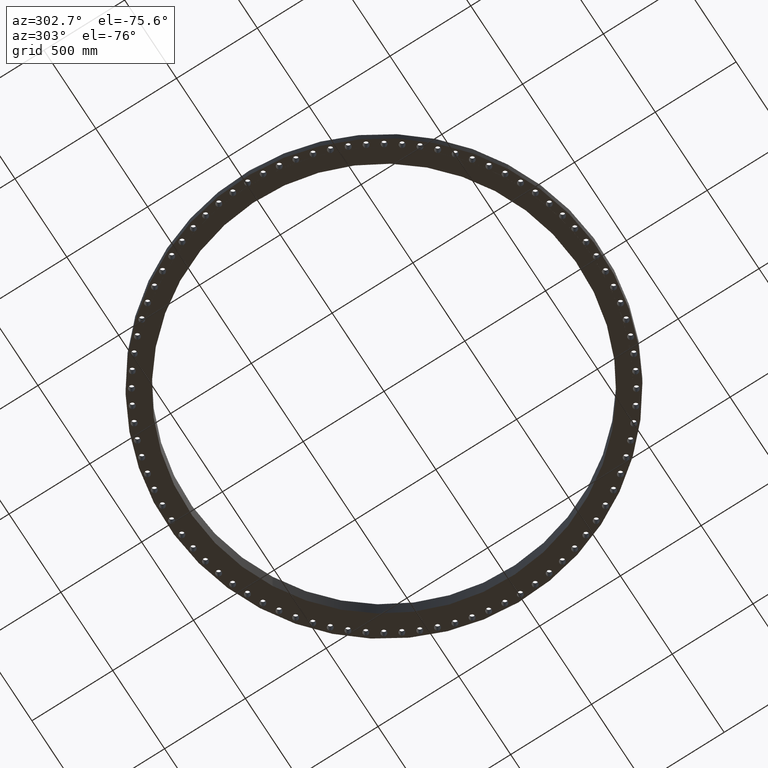
[diagram: clean part render]
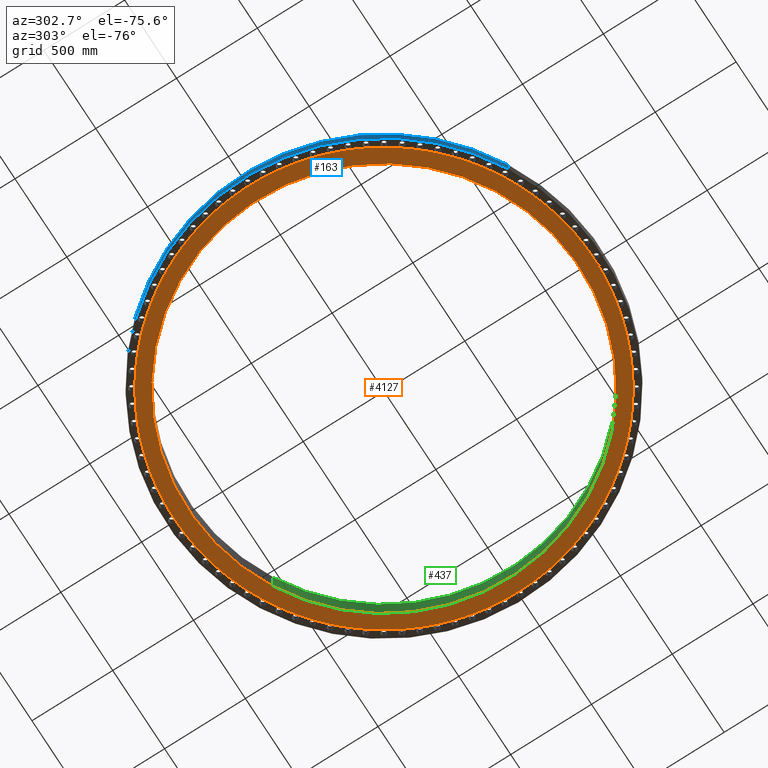
[diagram: same view with three faces highlighted in distinct colors, each labeled with its STEP entity id]
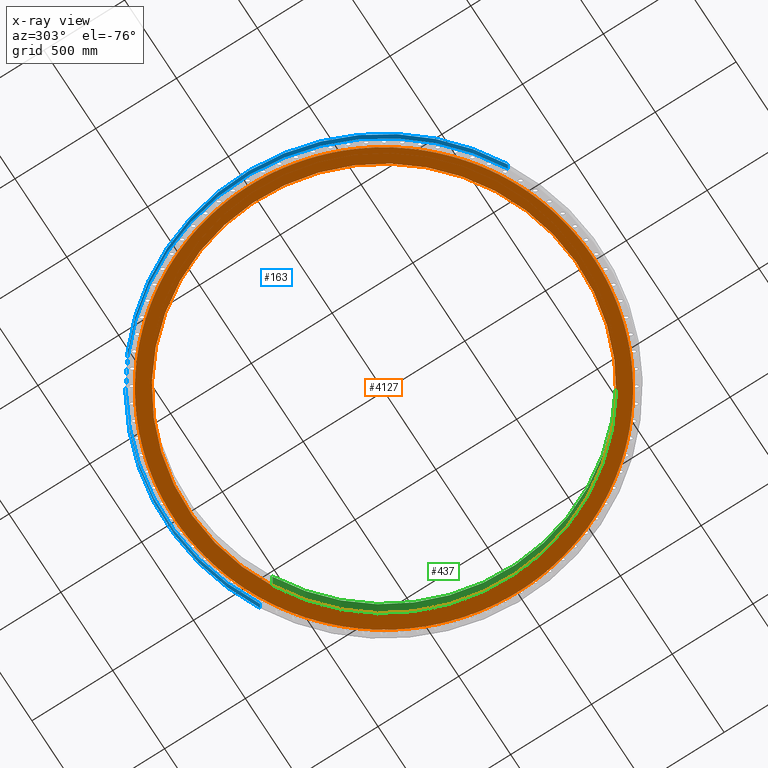
[diagram: x-ray of the same camera — body ghosted, the three highlighted faces saturated]
A machine part, auxiliary view with three faces highlighted in distinct colors.
The next image is the same camera in x-ray (body ghosted, the three faces saturated) — at least one of them is partly hidden behind the body in this view.
Their STEP definitions:

[orange] entity #4127 — the highlighted planar face has unit normal (0, 0, -1).
#91=AXIS2_PLACEMENT_3D('Circle Axis2P3D',#89,#90,$) ;
#409=AXIS2_PLACEMENT_3D('Circle Axis2P3D',#407,#408,$) ;
#428=AXIS2_PLACEMENT_3D('Circle Axis2P3D',#426,#427,$) ;
#445=AXIS2_PLACEMENT_3D('Circle Axis2P3D',#443,#444,$) ;
#487=AXIS2_PLACEMENT_3D('Circle Axis2P3D',#485,#486,$) ;
#515=AXIS2_PLACEMENT_3D('Circle Axis2P3D',#513,#514,$) ;
#557=AXIS2_PLACEMENT_3D('Circle Axis2P3D',#555,#556,$) ;
#576=AXIS2_PLACEMENT_3D('Circle Axis2P3D',#574,#575,$) ;
#611=AXIS2_PLACEMENT_3D('Circle Axis2P3D',#609,#610,$) ;
#646=AXIS2_PLACEMENT_3D('Circle Axis2P3D',#644,#645,$) ;
#681=AXIS2_PLACEMENT_3D('Circle Axis2P3D',#679,#680,$) ;
#716=AXIS2_PLACEMENT_3D('Circle Axis2P3D',#714,#715,$) ;
#751=AXIS2_PLACEMENT_3D('Circle Axis2P3D',#749,#750,$) ;
#786=AXIS2_PLACEMENT_3D('Circle Axis2P3D',#784,#785,$) ;
#830=AXIS2_PLACEMENT_3D('Circle Axis2P3D',#828,#829,$) ;
#856=AXIS2_PLACEMENT_3D('Circle Axis2P3D',#854,#855,$) ;
#907=AXIS2_PLACEMENT_3D('Circle Axis2P3D',#905,#906,$) ;
#926=AXIS2_PLACEMENT_3D('Circle Axis2P3D',#924,#925,$) ;
#984=AXIS2_PLACEMENT_3D('Circle Axis2P3D',#982,#983,$) ;
#1005=AXIS2_PLACEMENT_3D('Circle Axis2P3D',#1003,#1004,$) ;
#1031=AXIS2_PLACEMENT_3D('Circle Axis2P3D',#1029,#1030,$) ;
#1066=AXIS2_PLACEMENT_3D('Circle Axis2P3D',#1064,#1065,$) ;
#1101=AXIS2_PLACEMENT_3D('Circle Axis2P3D',#1099,#1100,$) ;
#1136=AXIS2_PLACEMENT_3D('Circle Axis2P3D',#1134,#1135,$) ;
#1171=AXIS2_PLACEMENT_3D('Circle Axis2P3D',#1169,#1170,$) ;
#1206=AXIS2_PLACEMENT_3D('Circle Axis2P3D',#1204,#1205,$) ;
#1241=AXIS2_PLACEMENT_3D('Circle Axis2P3D',#1239,#1240,$) ;
#1276=AXIS2_PLACEMENT_3D('Circle Axis2P3D',#1274,#1275,$) ;
#1311=AXIS2_PLACEMENT_3D('Circle Axis2P3D',#1309,#1310,$) ;
#1346=AXIS2_PLACEMENT_3D('Circle Axis2P3D',#1344,#1345,$) ;
#1381=AXIS2_PLACEMENT_3D('Circle Axis2P3D',#1379,#1380,$) ;
#1425=AXIS2_PLACEMENT_3D('Circle Axis2P3D',#1423,#1424,$) ;
#1460=AXIS2_PLACEMENT_3D('Circle Axis2P3D',#1458,#1459,$) ;
#1495=AXIS2_PLACEMENT_3D('Circle Axis2P3D',#1493,#1494,$) ;
#1530=AXIS2_PLACEMENT_3D('Circle Axis2P3D',#1528,#1529,$) ;
#1565=AXIS2_PLACEMENT_3D('Circle Axis2P3D',#1563,#1564,$) ;
#1600=AXIS2_PLACEMENT_3D('Circle Axis2P3D',#1598,#1599,$) ;
#1635=AXIS2_PLACEMENT_3D('Circle Axis2P3D',#1633,#1634,$) ;
#1670=AXIS2_PLACEMENT_3D('Circle Axis2P3D',#1668,#1669,$) ;
#1705=AXIS2_PLACEMENT_3D('Circle Axis2P3D',#1703,#1704,$) ;
#1740=AXIS2_PLACEMENT_3D('Circle Axis2P3D',#1738,#1739,$) ;
#1775=AXIS2_PLACEMENT_3D('Circle Axis2P3D',#1773,#1774,$) ;
#1810=AXIS2_PLACEMENT_3D('Circle Axis2P3D',#1808,#1809,$) ;
#1845=AXIS2_PLACEMENT_3D('Circle Axis2P3D',#1843,#1844,$) ;
#1880=AXIS2_PLACEMENT_3D('Circle Axis2P3D',#1878,#1879,$) ;
#1915=AXIS2_PLACEMENT_3D('Circle Axis2P3D',#1913,#1914,$) ;
#1950=AXIS2_PLACEMENT_3D('Circle Axis2P3D',#1948,#1949,$) ;
#1992=AXIS2_PLACEMENT_3D('Circle Axis2P3D',#1990,#1991,$) ;
#2011=AXIS2_PLACEMENT_3D('Circle Axis2P3D',#2009,#2010,$) ;
#2046=AXIS2_PLACEMENT_3D('Circle Axis2P3D',#2044,#2045,$) ;
#2081=AXIS2_PLACEMENT_3D('Circle Axis2P3D',#2079,#2080,$) ;
#2116=AXIS2_PLACEMENT_3D('Circle Axis2P3D',#2114,#2115,$) ;
#2151=AXIS2_PLACEMENT_3D('Circle Axis2P3D',#2149,#2150,$) ;
#2195=AXIS2_PLACEMENT_3D('Circle Axis2P3D',#2193,#2194,$) ;
#2230=AXIS2_PLACEMENT_3D('Circle Axis2P3D',#2228,#2229,$) ;
#2265=AXIS2_PLACEMENT_3D('Circle Axis2P3D',#2263,#2264,$) ;
#2307=AXIS2_PLACEMENT_3D('Circle Axis2P3D',#2305,#2306,$) ;
#2326=AXIS2_PLACEMENT_3D('Circle Axis2P3D',#2324,#2325,$) ;
#2361=AXIS2_PLACEMENT_3D('Circle Axis2P3D',#2359,#2360,$) ;
#2396=AXIS2_PLACEMENT_3D('Circle Axis2P3D',#2394,#2395,$) ;
#2431=AXIS2_PLACEMENT_3D('Circle Axis2P3D',#2429,#2430,$) ;
#2482=AXIS2_PLACEMENT_3D('Circle Axis2P3D',#2480,#2481,$) ;
#2517=AXIS2_PLACEMENT_3D('Circle Axis2P3D',#2515,#2516,$) ;
#2536=AXIS2_PLACEMENT_3D('Circle Axis2P3D',#2534,#2535,$) ;
#2585=AXIS2_PLACEMENT_3D('Circle Axis2P3D',#2583,#2584,$) ;
#2597=AXIS2_PLACEMENT_3D('Circle Axis2P3D',#2595,#2596,$) ;
#2648=AXIS2_PLACEMENT_3D('Circle Axis2P3D',#2646,#2647,$) ;
#2683=AXIS2_PLACEMENT_3D('Circle Axis2P3D',#2681,#2682,$) ;
#2718=AXIS2_PLACEMENT_3D('Circle Axis2P3D',#2716,#2717,$) ;
#2753=AXIS2_PLACEMENT_3D('Circle Axis2P3D',#2751,#2752,$) ;
#2788=AXIS2_PLACEMENT_3D('Circle Axis2P3D',#2786,#2787,$) ;
#2823=AXIS2_PLACEMENT_3D('Circle Axis2P3D',#2821,#2822,$) ;
#2858=AXIS2_PLACEMENT_3D('Circle Axis2P3D',#2856,#2857,$) ;
#2893=AXIS2_PLACEMENT_3D('Circle Axis2P3D',#2891,#2892,$) ;
#2928=AXIS2_PLACEMENT_3D('Circle Axis2P3D',#2926,#2927,$) ;
#2963=AXIS2_PLACEMENT_3D('Circle Axis2P3D',#2961,#2962,$) ;
#2998=AXIS2_PLACEMENT_3D('Circle Axis2P3D',#2996,#2997,$) ;
#3033=AXIS2_PLACEMENT_3D('Circle Axis2P3D',#3031,#3032,$) ;
#3068=AXIS2_PLACEMENT_3D('Circle Axis2P3D',#3066,#3067,$) ;
#3103=AXIS2_PLACEMENT_3D('Circle Axis2P3D',#3101,#3102,$) ;
#3145=AXIS2_PLACEMENT_3D('Circle Axis2P3D',#3143,#3144,$) ;
#3180=AXIS2_PLACEMENT_3D('Circle Axis2P3D',#3178,#3179,$) ;
#3215=AXIS2_PLACEMENT_3D('Circle Axis2P3D',#3213,#3214,$) ;
#3227=AXIS2_PLACEMENT_3D('Circle Axis2P3D',#3225,#3226,$) ;
#3278=AXIS2_PLACEMENT_3D('Circle Axis2P3D',#3276,#3277,$) ;
#3313=AXIS2_PLACEMENT_3D('Circle Axis2P3D',#3311,#3312,$) ;
#3355=AXIS2_PLACEMENT_3D('Circle Axis2P3D',#3353,#3354,$) ;
#3383=AXIS2_PLACEMENT_3D('Circle Axis2P3D',#3381,#3382,$) ;
#3402=AXIS2_PLACEMENT_3D('Circle Axis2P3D',#3400,#3401,$) ;
#3437=AXIS2_PLACEMENT_3D('Circle Axis2P3D',#3435,#3436,$) ;
#3472=AXIS2_PLACEMENT_3D('Circle Axis2P3D',#3470,#3471,$) ;
#3508=AXIS2_PLACEMENT_3D('Plane Axis2P3D',#3505,#3506,#3507) ;
#3512=AXIS2_PLACEMENT_3D('Circle Axis2P3D',#3510,#3511,$) ;
#3517=AXIS2_PLACEMENT_3D('Circle Axis2P3D',#3515,#3516,$) ;
#3522=AXIS2_PLACEMENT_3D('Circle Axis2P3D',#3520,#3521,$) ;
#3527=AXIS2_PLACEMENT_3D('Circle Axis2P3D',#3525,#3526,$) ;
#3532=AXIS2_PLACEMENT_3D('Circle Axis2P3D',#3530,#3531,$) ;
#3537=AXIS2_PLACEMENT_3D('Circle Axis2P3D',#3535,#3536,$) ;
#3542=AXIS2_PLACEMENT_3D('Circle Axis2P3D',#3540,#3541,$) ;
#3547=AXIS2_PLACEMENT_3D('Circle Axis2P3D',#3545,#3546,$) ;
#3552=AXIS2_PLACEMENT_3D('Circle Axis2P3D',#3550,#3551,$) ;
#3557=AXIS2_PLACEMENT_3D('Circle Axis2P3D',#3555,#3556,$) ;
#3562=AXIS2_PLACEMENT_3D('Circle Axis2P3D',#3560,#3561,$) ;
#3567=AXIS2_PLACEMENT_3D('Circle Axis2P3D',#3565,#3566,$) ;
#3572=AXIS2_PLACEMENT_3D('Circle Axis2P3D',#3570,#3571,$) ;
#3577=AXIS2_PLACEMENT_3D('Circle Axis2P3D',#3575,#3576,$) ;
#3582=AXIS2_PLACEMENT_3D('Circle Axis2P3D',#3580,#3581,$) ;
#3587=AXIS2_PLACEMENT_3D('Circle Axis2P3D',#3585,#3586,$) ;
#3592=AXIS2_PLACEMENT_3D('Circle Axis2P3D',#3590,#3591,$) ;
#3597=AXIS2_PLACEMENT_3D('Circle Axis2P3D',#3595,#3596,$) ;
#3602=AXIS2_PLACEMENT_3D('Circle Axis2P3D',#3600,#3601,$) ;
#3607=AXIS2_PLACEMENT_3D('Circle Axis2P3D',#3605,#3606,$) ;
#3612=AXIS2_PLACEMENT_3D('Circle Axis2P3D',#3610,#3611,$) ;
#3617=AXIS2_PLACEMENT_3D('Circle Axis2P3D',#3615,#3616,$) ;
#3622=AXIS2_PLACEMENT_3D('Circle Axis2P3D',#3620,#3621,$) ;
#3627=AXIS2_PLACEMENT_3D('Circle Axis2P3D',#3625,#3626,$) ;
#3632=AXIS2_PLACEMENT_3D('Circle Axis2P3D',#3630,#3631,$) ;
#3637=AXIS2_PLACEMENT_3D('Circle Axis2P3D',#3635,#3636,$) ;
#3642=AXIS2_PLACEMENT_3D('Circle Axis2P3D',#3640,#3641,$) ;
#3647=AXIS2_PLACEMENT_3D('Circle Axis2P3D',#3645,#3646,$) ;
#3652=AXIS2_PLACEMENT_3D('Circle Axis2P3D',#3650,#3651,$) ;
#3657=AXIS2_PLACEMENT_3D('Circle Axis2P3D',#3655,#3656,$) ;
#3662=AXIS2_PLACEMENT_3D('Circle Axis2P3D',#3660,#3661,$) ;
#3667=AXIS2_PLACEMENT_3D('Circle Axis2P3D',#3665,#3666,$) ;
#3672=AXIS2_PLACEMENT_3D('Circle Axis2P3D',#3670,#3671,$) ;
#3677=AXIS2_PLACEMENT_3D('Circle Axis2P3D',#3675,#3676,$) ;
#3682=AXIS2_PLACEMENT_3D('Circle Axis2P3D',#3680,#3681,$) ;
#3687=AXIS2_PLACEMENT_3D('Circle Axis2P3D',#3685,#3686,$) ;
#3692=AXIS2_PLACEMENT_3D('Circle Axis2P3D',#3690,#3691,$) ;
#3697=AXIS2_PLACEMENT_3D('Circle Axis2P3D',#3695,#3696,$) ;
#3702=AXIS2_PLACEMENT_3D('Circle Axis2P3D',#3700,#3701,$) ;
#3707=AXIS2_PLACEMENT_3D('Circle Axis2P3D',#3705,#3706,$) ;
#3712=AXIS2_PLACEMENT_3D('Circle Axis2P3D',#3710,#3711,$) ;
#3717=AXIS2_PLACEMENT_3D('Circle Axis2P3D',#3715,#3716,$) ;
#3722=AXIS2_PLACEMENT_3D('Circle Axis2P3D',#3720,#3721,$) ;
#3727=AXIS2_PLACEMENT_3D('Circle Axis2P3D',#3725,#3726,$) ;
#3732=AXIS2_PLACEMENT_3D('Circle Axis2P3D',#3730,#3731,$) ;
#3737=AXIS2_PLACEMENT_3D('Circle Axis2P3D',#3735,#3736,$) ;
#3742=AXIS2_PLACEMENT_3D('Circle Axis2P3D',#3740,#3741,$) ;
#3747=AXIS2_PLACEMENT_3D('Circle Axis2P3D',#3745,#3746,$) ;
#3752=AXIS2_PLACEMENT_3D('Circle Axis2P3D',#3750,#3751,$) ;
#3757=AXIS2_PLACEMENT_3D('Circle Axis2P3D',#3755,#3756,$) ;
#3762=AXIS2_PLACEMENT_3D('Circle Axis2P3D',#3760,#3761,$) ;
#3767=AXIS2_PLACEMENT_3D('Circle Axis2P3D',#3765,#3766,$) ;
#3772=AXIS2_PLACEMENT_3D('Circle Axis2P3D',#3770,#3771,$) ;
#3777=AXIS2_PLACEMENT_3D('Circle Axis2P3D',#3775,#3776,$) ;
#3782=AXIS2_PLACEMENT_3D('Circle Axis2P3D',#3780,#3781,$) ;
#3787=AXIS2_PLACEMENT_3D('Circle Axis2P3D',#3785,#3786,$) ;
#3792=AXIS2_PLACEMENT_3D('Circle Axis2P3D',#3790,#3791,$) ;
#3797=AXIS2_PLACEMENT_3D('Circle Axis2P3D',#3795,#3796,$) ;
#3802=AXIS2_PLACEMENT_3D('Circle Axis2P3D',#3800,#3801,$) ;
#3807=AXIS2_PLACEMENT_3D('Circle Axis2P3D',#3805,#3806,$) ;
#3812=AXIS2_PLACEMENT_3D('Circle Axis2P3D',#3810,#3811,$) ;
#3817=AXIS2_PLACEMENT_3D('Circle Axis2P3D',#3815,#3816,$) ;
#3822=AXIS2_PLACEMENT_3D('Circle Axis2P3D',#3820,#3821,$) ;
#3827=AXIS2_PLACEMENT_3D('Circle Axis2P3D',#3825,#3826,$) ;
#3832=AXIS2_PLACEMENT_3D('Circle Axis2P3D',#3830,#3831,$) ;
#3837=AXIS2_PLACEMENT_3D('Circle Axis2P3D',#3835,#3836,$) ;
#3842=AXIS2_PLACEMENT_3D('Circle Axis2P3D',#3840,#3841,$) ;
#3847=AXIS2_PLACEMENT_3D('Circle Axis2P3D',#3845,#3846,$) ;
#3852=AXIS2_PLACEMENT_3D('Circle Axis2P3D',#3850,#3851,$) ;
#3857=AXIS2_PLACEMENT_3D('Circle Axis2P3D',#3855,#3856,$) ;
#3862=AXIS2_PLACEMENT_3D('Circle Axis2P3D',#3860,#3861,$) ;
#3867=AXIS2_PLACEMENT_3D('Circle Axis2P3D',#3865,#3866,$) ;
#3872=AXIS2_PLACEMENT_3D('Circle Axis2P3D',#3870,#3871,$) ;
#3877=AXIS2_PLACEMENT_3D('Circle Axis2P3D',#3875,#3876,$) ;
#3882=AXIS2_PLACEMENT_3D('Circle Axis2P3D',#3880,#3881,$) ;
#3887=AXIS2_PLACEMENT_3D('Circle Axis2P3D',#3885,#3886,$) ;
#3892=AXIS2_PLACEMENT_3D('Circle Axis2P3D',#3890,#3891,$) ;
#3897=AXIS2_PLACEMENT_3D('Circle Axis2P3D',#3895,#3896,$) ;
#3902=AXIS2_PLACEMENT_3D('Circle Axis2P3D',#3900,#3901,$) ;
#3907=AXIS2_PLACEMENT_3D('Circle Axis2P3D',#3905,#3906,$) ;
#3912=AXIS2_PLACEMENT_3D('Circle Axis2P3D',#3910,#3911,$) ;
#3917=AXIS2_PLACEMENT_3D('Circle Axis2P3D',#3915,#3916,$) ;
#3922=AXIS2_PLACEMENT_3D('Circle Axis2P3D',#3920,#3921,$) ;
#3927=AXIS2_PLACEMENT_3D('Circle Axis2P3D',#3925,#3926,$) ;
#3932=AXIS2_PLACEMENT_3D('Circle Axis2P3D',#3930,#3931,$) ;
#3937=AXIS2_PLACEMENT_3D('Circle Axis2P3D',#3935,#3936,$) ;
#3942=AXIS2_PLACEMENT_3D('Circle Axis2P3D',#3940,#3941,$) ;
#86=CARTESIAN_POINT('Vertex',(51.0649335751,-0.0823649996803,-0.0625000000002)) ;
#89=CARTESIAN_POINT('Axis2P3D Location',(51.7500000002,0.,-0.0625000000002)) ;
#93=CARTESIAN_POINT('Vertex',(51.0649335751,0.0823649996803,-0.0625000000002)) ;
#404=CARTESIAN_POINT('Vertex',(-22.8326412761,-41.7948695102,-0.0625000000003)) ;
#407=CARTESIAN_POINT('Axis2P3D Location',(0.,0.,-0.0625000000003)) ;
#411=CARTESIAN_POINT('Vertex',(22.8326412761,41.7948695102,-0.0625000000003)) ;
#426=CARTESIAN_POINT('Axis2P3D Location',(0.,0.,-0.0625000000003)) ;
#443=CARTESIAN_POINT('Axis2P3D Location',(0.,0.,-0.0625000000002)) ;
#447=CARTESIAN_POINT('Vertex',(50.5568879425,7.18577112043,-0.0625000000002)) ;
#449=CARTESIAN_POINT('Vertex',(50.9289501251,3.72508579447,-0.0625000000002)) ;
#485=CARTESIAN_POINT('Axis2P3D Location',(0.,0.,-0.0625000000002)) ;
#489=CARTESIAN_POINT('Vertex',(50.9407018287,3.56077550827,-0.0625000000002)) ;
#510=CARTESIAN_POINT('Vertex',(50.5334444192,7.34882440592,-0.0625000000002)) ;
#513=CARTESIAN_POINT('Axis2P3D Location',(0.,0.,-0.0625000000002)) ;
#517=CARTESIAN_POINT('Vertex',(49.9154477439,10.7741496901,-0.0625000000002)) ;
#552=CARTESIAN_POINT('Vertex',(49.8804318639,10.9351150927,-0.0625000000002)) ;
#555=CARTESIAN_POINT('Axis2P3D Location',(0.,0.,-0.0625000000002)) ;
#559=CARTESIAN_POINT('Vertex',(49.0196498653,14.3076256626,-0.0625000000002)) ;
#574=CARTESIAN_POINT('Axis2P3D Location',(0.,0.,-0.0625000000002)) ;
#578=CARTESIAN_POINT('Vertex',(47.8740590873,17.7681932543,-0.0625000000002)) ;
#580=CARTESIAN_POINT('Vertex',(48.9732400614,14.4656829395,-0.0625000000002)) ;
#609=CARTESIAN_POINT('Axis2P3D Location',(0.,0.,-0.0625000000002)) ;
#613=CARTESIAN_POINT('Vertex',(46.484513078,21.138218206,-0.0625000000002)) ;
#615=CARTESIAN_POINT('Vertex',(47.8164918533,17.9225369819,-0.0625000000002)) ;
#644=CARTESIAN_POINT('Axis2P3D Location',(0.,0.,-0.0625000000002)) ;
#648=CARTESIAN_POINT('Vertex',(44.8580926451,24.4005276431,-0.0625000000002)) ;
#650=CARTESIAN_POINT('Vertex',(46.4160817631,21.288061884,-0.0625000000002)) ;
#679=CARTESIAN_POINT('Axis2P3D Location',(0.,0.,-0.0625000000002)) ;
#683=CARTESIAN_POINT('Vertex',(43.0030856546,27.5384975844,-0.0625000000002)) ;
#685=CARTESIAN_POINT('Vertex',(44.7791459599,24.5451077025,-0.0625000000002)) ;
#714=CARTESIAN_POINT('Axis2P3D Location',(0.,0.,-0.0625000000002)) ;
#718=CARTESIAN_POINT('Vertex',(40.9289447967,30.5361376544,-0.0625000000002)) ;
#720=CARTESIAN_POINT('Vertex',(42.9140258931,27.6770772783,-0.0625000000002)) ;
#749=CARTESIAN_POINT('Axis2P3D Location',(0.,0.,-0.0625000000002)) ;
#753=CARTESIAN_POINT('Vertex',(38.6462394179,33.3781725664,-0.0625000000002)) ;
#755=CARTESIAN_POINT('Vertex',(40.8302257871,30.6680108125,-0.0625000000002)) ;
#784=CARTESIAN_POINT('Axis2P3D Location',(0.,0.,-0.0625000000002)) ;
#788=CARTESIAN_POINT('Vertex',(36.1666016616,36.050119962,-0.0625000000002)) ;
#790=CARTESIAN_POINT('Vertex',(38.5383642097,33.5026671933,-0.0625000000002)) ;
#825=CARTESIAN_POINT('Vertex',(36.050119962,36.1666016616,-0.0625000000002)) ;
#828=CARTESIAN_POINT('Axis2P3D Location',(0.,0.,-0.0625000000002)) ;
#832=CARTESIAN_POINT('Vertex',(33.5026671933,38.5383642097,-0.0625000000002)) ;
#854=CARTESIAN_POINT('Axis2P3D Location',(0.,0.,-0.0625000000002)) ;
#858=CARTESIAN_POINT('Vertex',(27.6770772783,42.9140258931,-0.0625000000002)) ;
#860=CARTESIAN_POINT('Vertex',(30.5361376544,40.9289447967,-0.0625000000002)) ;
#902=CARTESIAN_POINT('Vertex',(27.5384975844,43.0030856546,-0.0625000000002)) ;
#905=CARTESIAN_POINT('Axis2P3D Location',(0.,0.,-0.0625000000002)) ;
#909=CARTESIAN_POINT('Vertex',(24.5451077025,44.7791459599,-0.0625000000002)) ;
#924=CARTESIAN_POINT('Axis2P3D Location',(0.,0.,-0.0625000000002)) ;
#928=CARTESIAN_POINT('Vertex',(30.6680108125,40.8302257871,-0.0625000000002)) ;
#930=CARTESIAN_POINT('Vertex',(33.3781725664,38.6462394179,-0.0625000000002)) ;
#965=CARTESIAN_POINT('Vertex',(21.288061884,46.4160817631,-0.0625000000002)) ;
#979=CARTESIAN_POINT('Vertex',(24.4005276431,44.8580926451,-0.0625000000002)) ;
#982=CARTESIAN_POINT('Axis2P3D Location',(0.,0.,-0.0625000000002)) ;
#1000=CARTESIAN_POINT('Vertex',(21.138218206,46.484513078,-0.0625000000002)) ;
#1003=CARTESIAN_POINT('Axis2P3D Location',(0.,0.,-0.0625000000002)) ;
#1007=CARTESIAN_POINT('Vertex',(17.9225369819,47.8164918533,-0.0625000000002)) ;
#1029=CARTESIAN_POINT('Axis2P3D Location',(0.,0.,-0.0625000000002)) ;
#1033=CARTESIAN_POINT('Vertex',(10.9351150927,49.8804318639,-0.0625000000002)) ;
#1035=CARTESIAN_POINT('Vertex',(14.3076256626,49.0196498653,-0.0625000000002)) ;
#1064=CARTESIAN_POINT('Axis2P3D Location',(0.,0.,-0.0625000000002)) ;
#1068=CARTESIAN_POINT('Vertex',(7.34882440592,50.5334444192,-0.0625000000002)) ;
#1070=CARTESIAN_POINT('Vertex',(10.7741496901,49.9154477439,-0.0625000000002)) ;
#1099=CARTESIAN_POINT('Axis2P3D Location',(0.,0.,-0.0625000000002)) ;
#1103=CARTESIAN_POINT('Vertex',(3.72508579447,50.9289501251,-0.0625000000002)) ;
#1105=CARTESIAN_POINT('Vertex',(7.18577112043,50.5568879425,-0.0625000000002)) ;
#1134=CARTESIAN_POINT('Axis2P3D Location',(0.,0.,-0.0625000000002)) ;
#1138=CARTESIAN_POINT('Vertex',(0.08236499968,51.0649335751,-0.0625000000002)) ;
#1140=CARTESIAN_POINT('Vertex',(3.56077550827,50.9407018287,-0.0625000000002)) ;
#1169=CARTESIAN_POINT('Axis2P3D Location',(0.,0.,-0.0625000000002)) ;
#1173=CARTESIAN_POINT('Vertex',(-3.56077550827,50.9407018287,-0.0625000000002)) ;
#1175=CARTESIAN_POINT('Vertex',(-0.0823649996801,51.0649335751,-0.0625000000002)) ;
#1204=CARTESIAN_POINT('Axis2P3D Location',(0.,0.,-0.0625000000002)) ;
#1208=CARTESIAN_POINT('Vertex',(-7.18577112043,50.5568879425,-0.0625000000002)) ;
#1210=CARTESIAN_POINT('Vertex',(-3.72508579447,50.9289501251,-0.0625000000002)) ;
#1239=CARTESIAN_POINT('Axis2P3D Location',(0.,0.,-0.0625000000002)) ;
#1243=CARTESIAN_POINT('Vertex',(-10.7741496901,49.9154477439,-0.0625000000002)) ;
#1245=CARTESIAN_POINT('Vertex',(-7.34882440592,50.5334444192,-0.0625000000002)) ;
#1274=CARTESIAN_POINT('Axis2P3D Location',(0.,0.,-0.0625000000002)) ;
#1278=CARTESIAN_POINT('Vertex',(-14.3076256626,49.0196498653,-0.0625000000002)) ;
#1280=CARTESIAN_POINT('Vertex',(-10.9351150927,49.8804318639,-0.0625000000002)) ;
#1309=CARTESIAN_POINT('Axis2P3D Location',(0.,0.,-0.0625000000002)) ;
#1313=CARTESIAN_POINT('Vertex',(-17.7681932543,47.8740590873,-0.0625000000002)) ;
#1315=CARTESIAN_POINT('Vertex',(-14.4656829395,48.9732400614,-0.0625000000002)) ;
#1344=CARTESIAN_POINT('Axis2P3D Location',(0.,0.,-0.0625000000002)) ;
#1348=CARTESIAN_POINT('Vertex',(-21.138218206,46.484513078,-0.0625000000002)) ;
#1350=CARTESIAN_POINT('Vertex',(-17.9225369819,47.8164918533,-0.0625000000002)) ;
#1379=CARTESIAN_POINT('Axis2P3D Location',(0.,0.,-0.0625000000002)) ;
#1383=CARTESIAN_POINT('Vertex',(-24.4005276431,44.8580926451,-0.0625000000002)) ;
#1385=CARTESIAN_POINT('Vertex',(-21.288061884,46.4160817631,-0.0625000000002)) ;
#1420=CARTESIAN_POINT('Vertex',(-24.5451077025,44.7791459599,-0.0625000000002)) ;
#1423=CARTESIAN_POINT('Axis2P3D Location',(0.,0.,-0.0625000000002)) ;
#1427=CARTESIAN_POINT('Vertex',(-27.5384975844,43.0030856546,-0.0625000000002)) ;
#1455=CARTESIAN_POINT('Vertex',(-27.6770772783,42.9140258931,-0.0625000000002)) ;
#1458=CARTESIAN_POINT('Axis2P3D Location',(0.,0.,-0.0625000000002)) ;
#1462=CARTESIAN_POINT('Vertex',(-30.5361376544,40.9289447967,-0.0625000000002)) ;
#1490=CARTESIAN_POINT('Vertex',(-30.6680108125,40.8302257871,-0.0625000000002)) ;
#1493=CARTESIAN_POINT('Axis2P3D Location',(0.,0.,-0.0625000000002)) ;
#1497=CARTESIAN_POINT('Vertex',(-33.3781725664,38.6462394179,-0.0625000000002)) ;
#1525=CARTESIAN_POINT('Vertex',(-33.5026671933,38.5383642097,-0.0625000000002)) ;
#1528=CARTESIAN_POINT('Axis2P3D Location',(0.,0.,-0.0625000000002)) ;
#1532=CARTESIAN_POINT('Vertex',(-36.050119962,36.1666016616,-0.0625000000002)) ;
#1560=CARTESIAN_POINT('Vertex',(-36.1666016616,36.050119962,-0.0625000000002)) ;
#1563=CARTESIAN_POINT('Axis2P3D Location',(0.,0.,-0.0625000000002)) ;
#1567=CARTESIAN_POINT('Vertex',(-38.5383642097,33.5026671933,-0.0625000000002)) ;
#1595=CARTESIAN_POINT('Vertex',(-38.6462394179,33.3781725664,-0.0625000000002)) ;
#1598=CARTESIAN_POINT('Axis2P3D Location',(0.,0.,-0.0625000000002)) ;
#1602=CARTESIAN_POINT('Vertex',(-40.8302257871,30.6680108125,-0.0625000000002)) ;
#1630=CARTESIAN_POINT('Vertex',(-40.9289447967,30.5361376544,-0.0625000000002)) ;
#1633=CARTESIAN_POINT('Axis2P3D Location',(0.,0.,-0.0625000000002)) ;
#1637=CARTESIAN_POINT('Vertex',(-42.9140258931,27.6770772783,-0.0625000000002)) ;
#1665=CARTESIAN_POINT('Vertex',(-43.0030856546,27.5384975844,-0.0625000000002)) ;
#1668=CARTESIAN_POINT('Axis2P3D Location',(0.,0.,-0.0625000000002)) ;
#1672=CARTESIAN_POINT('Vertex',(-44.7791459599,24.5451077025,-0.0625000000002)) ;
#1700=CARTESIAN_POINT('Vertex',(-44.8580926451,24.4005276431,-0.0625000000002)) ;
#1703=CARTESIAN_POINT('Axis2P3D Location',(0.,0.,-0.0625000000002)) ;
#1707=CARTESIAN_POINT('Vertex',(-46.4160817631,21.288061884,-0.0625000000002)) ;
#1735=CARTESIAN_POINT('Vertex',(-46.484513078,21.138218206,-0.0625000000002)) ;
#1738=CARTESIAN_POINT('Axis2P3D Location',(0.,0.,-0.0625000000002)) ;
#1742=CARTESIAN_POINT('Vertex',(-47.8164918533,17.9225369819,-0.0625000000002)) ;
#1770=CARTESIAN_POINT('Vertex',(-47.8740590873,17.7681932543,-0.0625000000002)) ;
#1773=CARTESIAN_POINT('Axis2P3D Location',(0.,0.,-0.0625000000002)) ;
#1777=CARTESIAN_POINT('Vertex',(-48.9732400614,14.4656829395,-0.0625000000002)) ;
#1805=CARTESIAN_POINT('Vertex',(-49.0196498653,14.3076256626,-0.0625000000002)) ;
#1808=CARTESIAN_POINT('Axis2P3D Location',(0.,0.,-0.0625000000002)) ;
#1812=CARTESIAN_POINT('Vertex',(-49.8804318639,10.9351150927,-0.0625000000002)) ;
#1840=CARTESIAN_POINT('Vertex',(-49.9154477439,10.7741496901,-0.0625000000002)) ;
#1843=CARTESIAN_POINT('Axis2P3D Location',(0.,0.,-0.0625000000002)) ;
#1847=CARTESIAN_POINT('Vertex',(-50.5334444192,7.34882440592,-0.0625000000002)) ;
#1875=CARTESIAN_POINT('Vertex',(-50.5568879425,7.18577112043,-0.0625000000002)) ;
#1878=CARTESIAN_POINT('Axis2P3D Location',(0.,0.,-0.0625000000002)) ;
#1882=CARTESIAN_POINT('Vertex',(-50.9289501251,3.72508579447,-0.0625000000002)) ;
#1910=CARTESIAN_POINT('Vertex',(-50.9407018287,3.56077550827,-0.0625000000002)) ;
#1913=CARTESIAN_POINT('Axis2P3D Location',(0.,0.,-0.0625000000002)) ;
#1917=CARTESIAN_POINT('Vertex',(-51.0649335751,0.0823649996801,-0.0625000000002)) ;
#1945=CARTESIAN_POINT('Vertex',(-51.0649335751,-0.0823649996801,-0.0625000000002)) ;
#1948=CARTESIAN_POINT('Axis2P3D Location',(0.,0.,-0.0625000000002)) ;
#1952=CARTESIAN_POINT('Vertex',(-50.9407018287,-3.56077550827,-0.0625000000002)) ;
#1987=CARTESIAN_POINT('Vertex',(-50.9289501251,-3.72508579447,-0.0625000000002)) ;
#1990=CARTESIAN_POINT('Axis2P3D Location',(0.,0.,-0.0625000000002)) ;
#1994=CARTESIAN_POINT('Vertex',(-50.5568879425,-7.18577112043,-0.0625000000002)) ;
#2009=CARTESIAN_POINT('Axis2P3D Location',(0.,0.,-0.0625000000002)) ;
#2013=CARTESIAN_POINT('Vertex',(-47.8740590873,-17.7681932543,-0.0625000000002)) ;
#2015=CARTESIAN_POINT('Vertex',(-48.9732400614,-14.4656829395,-0.0625000000002)) ;
#2044=CARTESIAN_POINT('Axis2P3D Location',(0.,0.,-0.0625000000002)) ;
#2048=CARTESIAN_POINT('Vertex',(-46.484513078,-21.138218206,-0.0625000000002)) ;
#2050=CARTESIAN_POINT('Vertex',(-47.8164918533,-17.9225369819,-0.0625000000002)) ;
#2079=CARTESIAN_POINT('Axis2P3D Location',(0.,0.,-0.0625000000002)) ;
#2083=CARTESIAN_POINT('Vertex',(-44.8580926451,-24.4005276431,-0.0625000000002)) ;
#2085=CARTESIAN_POINT('Vertex',(-46.4160817631,-21.288061884,-0.0625000000002)) ;
#2114=CARTESIAN_POINT('Axis2P3D Location',(0.,0.,-0.0625000000002)) ;
#2118=CARTESIAN_POINT('Vertex',(-43.0030856546,-27.5384975844,-0.0625000000002)) ;
#2120=CARTESIAN_POINT('Vertex',(-44.7791459599,-24.5451077025,-0.0625000000002)) ;
#2149=CARTESIAN_POINT('Axis2P3D Location',(0.,0.,-0.0625000000002)) ;
#2153=CARTESIAN_POINT('Vertex',(-40.9289447967,-30.5361376544,-0.0625000000002)) ;
#2155=CARTESIAN_POINT('Vertex',(-42.9140258931,-27.6770772783,-0.0625000000002)) ;
#2190=CARTESIAN_POINT('Vertex',(-40.8302257871,-30.6680108125,-0.0625000000002)) ;
#2193=CARTESIAN_POINT('Axis2P3D Location',(0.,0.,-0.0625000000002)) ;
#2197=CARTESIAN_POINT('Vertex',(-38.6462394179,-33.3781725664,-0.0625000000002)) ;
#2225=CARTESIAN_POINT('Vertex',(-38.5383642097,-33.5026671933,-0.0625000000002)) ;
#2228=CARTESIAN_POINT('Axis2P3D Location',(0.,0.,-0.0625000000002)) ;
#2232=CARTESIAN_POINT('Vertex',(-36.1666016616,-36.050119962,-0.0625000000002)) ;
#2260=CARTESIAN_POINT('Vertex',(-36.050119962,-36.1666016616,-0.0625000000002)) ;
#2263=CARTESIAN_POINT('Axis2P3D Location',(0.,0.,-0.0625000000002)) ;
#2267=CARTESIAN_POINT('Vertex',(-33.5026671933,-38.5383642097,-0.0625000000002)) ;
#2302=CARTESIAN_POINT('Vertex',(-33.3781725664,-38.6462394179,-0.0625000000002)) ;
#2305=CARTESIAN_POINT('Axis2P3D Location',(0.,0.,-0.0625000000002)) ;
#2309=CARTESIAN_POINT('Vertex',(-30.6680108125,-40.8302257871,-0.0625000000002)) ;
#2324=CARTESIAN_POINT('Axis2P3D Location',(0.,0.,-0.0625000000002)) ;
#2328=CARTESIAN_POINT('Vertex',(-27.6770772783,-42.9140258931,-0.0625000000002)) ;
#2330=CARTESIAN_POINT('Vertex',(-30.5361376544,-40.9289447967,-0.0625000000002)) ;
#2359=CARTESIAN_POINT('Axis2P3D Location',(0.,0.,-0.0625000000002)) ;
#2363=CARTESIAN_POINT('Vertex',(-24.5451077025,-44.7791459599,-0.0625000000002)) ;
#2365=CARTESIAN_POINT('Vertex',(-27.5384975844,-43.0030856546,-0.0625000000002)) ;
#2394=CARTESIAN_POINT('Axis2P3D Location',(0.,0.,-0.0625000000002)) ;
#2398=CARTESIAN_POINT('Vertex',(-49.9154477439,-10.7741496901,-0.0625000000002)) ;
#2400=CARTESIAN_POINT('Vertex',(-50.5334444192,-7.34882440592,-0.0625000000002)) ;
#2429=CARTESIAN_POINT('Axis2P3D Location',(0.,0.,-0.0625000000002)) ;
#2433=CARTESIAN_POINT('Vertex',(-49.0196498653,-14.3076256626,-0.0625000000002)) ;
#2435=CARTESIAN_POINT('Vertex',(-49.8804318639,-10.9351150927,-0.0625000000002)) ;
#2477=CARTESIAN_POINT('Vertex',(17.7681932543,47.8740590873,-0.0625000000002)) ;
#2480=CARTESIAN_POINT('Axis2P3D Location',(0.,0.,-0.0625000000002)) ;
#2484=CARTESIAN_POINT('Vertex',(14.4656829395,48.9732400614,-0.0625000000002)) ;
#2512=CARTESIAN_POINT('Vertex',(50.5568879425,-7.18577112043,-0.0625000000002)) ;
#2515=CARTESIAN_POINT('Axis2P3D Location',(0.,0.,-0.0625000000002)) ;
#2519=CARTESIAN_POINT('Vertex',(50.9289501251,-3.72508579447,-0.0625000000002)) ;
#2534=CARTESIAN_POINT('Axis2P3D Location',(0.,0.,-0.0625000000002)) ;
#2538=CARTESIAN_POINT('Vertex',(50.9407018287,-3.56077550827,-0.0625000000002)) ;
#2566=CARTESIAN_POINT('Vertex',(50.5334444192,-7.34882440592,-0.0625000000002)) ;
#2580=CARTESIAN_POINT('Vertex',(49.9154477439,-10.7741496901,-0.0625000000002)) ;
#2583=CARTESIAN_POINT('Axis2P3D Location',(0.,0.,-0.0625000000002)) ;
#2595=CARTESIAN_POINT('Axis2P3D Location',(0.,0.,-0.0625000000002)) ;
#2599=CARTESIAN_POINT('Vertex',(49.8804318639,-10.9351150927,-0.0625000000002)) ;
#2601=CARTESIAN_POINT('Vertex',(49.0196498653,-14.3076256626,-0.0625000000002)) ;
#2643=CARTESIAN_POINT('Vertex',(47.8740590873,-17.7681932543,-0.0625000000002)) ;
#2646=CARTESIAN_POINT('Axis2P3D Location',(0.,0.,-0.0625000000002)) ;
#2650=CARTESIAN_POINT('Vertex',(48.9732400614,-14.4656829395,-0.0625000000002)) ;
#2678=CARTESIAN_POINT('Vertex',(46.484513078,-21.138218206,-0.0625000000002)) ;
#2681=CARTESIAN_POINT('Axis2P3D Location',(0.,0.,-0.0625000000002)) ;
#2685=CARTESIAN_POINT('Vertex',(47.8164918533,-17.9225369819,-0.0625000000002)) ;
#2713=CARTESIAN_POINT('Vertex',(44.8580926451,-24.4005276431,-0.0625000000002)) ;
#2716=CARTESIAN_POINT('Axis2P3D Location',(0.,0.,-0.0625000000002)) ;
#2720=CARTESIAN_POINT('Vertex',(46.4160817631,-21.288061884,-0.0625000000002)) ;
#2748=CARTESIAN_POINT('Vertex',(43.0030856546,-27.5384975844,-0.0625000000002)) ;
#2751=CARTESIAN_POINT('Axis2P3D Location',(0.,0.,-0.0625000000002)) ;
#2755=CARTESIAN_POINT('Vertex',(44.7791459599,-24.5451077025,-0.0625000000002)) ;
#2783=CARTESIAN_POINT('Vertex',(40.9289447967,-30.5361376544,-0.0625000000002)) ;
#2786=CARTESIAN_POINT('Axis2P3D Location',(0.,0.,-0.0625000000002)) ;
#2790=CARTESIAN_POINT('Vertex',(42.9140258931,-27.6770772783,-0.0625000000002)) ;
#2818=CARTESIAN_POINT('Vertex',(38.6462394179,-33.3781725664,-0.0625000000002)) ;
#2821=CARTESIAN_POINT('Axis2P3D Location',(0.,0.,-0.0625000000002)) ;
#2825=CARTESIAN_POINT('Vertex',(40.8302257871,-30.6680108125,-0.0625000000002)) ;
#2853=CARTESIAN_POINT('Vertex',(36.1666016616,-36.050119962,-0.0625000000002)) ;
#2856=CARTESIAN_POINT('Axis2P3D Location',(0.,0.,-0.0625000000002)) ;
#2860=CARTESIAN_POINT('Vertex',(38.5383642097,-33.5026671933,-0.0625000000002)) ;
#2888=CARTESIAN_POINT('Vertex',(33.5026671933,-38.5383642097,-0.0625000000002)) ;
#2891=CARTESIAN_POINT('Axis2P3D Location',(0.,0.,-0.0625000000002)) ;
#2895=CARTESIAN_POINT('Vertex',(36.050119962,-36.1666016616,-0.0625000000002)) ;
#2923=CARTESIAN_POINT('Vertex',(30.6680108125,-40.8302257871,-0.0625000000002)) ;
#2926=CARTESIAN_POINT('Axis2P3D Location',(0.,0.,-0.0625000000002)) ;
#2930=CARTESIAN_POINT('Vertex',(33.3781725664,-38.6462394179,-0.0625000000002)) ;
#2958=CARTESIAN_POINT('Vertex',(27.6770772783,-42.9140258931,-0.0625000000002)) ;
#2961=CARTESIAN_POINT('Axis2P3D Location',(0.,0.,-0.0625000000002)) ;
#2965=CARTESIAN_POINT('Vertex',(30.5361376544,-40.9289447967,-0.0625000000002)) ;
#2993=CARTESIAN_POINT('Vertex',(24.5451077025,-44.7791459599,-0.0625000000002)) ;
#2996=CARTESIAN_POINT('Axis2P3D Location',(0.,0.,-0.0625000000002)) ;
#3000=CARTESIAN_POINT('Vertex',(27.5384975844,-43.0030856546,-0.0625000000002)) ;
#3028=CARTESIAN_POINT('Vertex',(21.288061884,-46.4160817631,-0.0625000000002)) ;
#3031=CARTESIAN_POINT('Axis2P3D Location',(0.,0.,-0.0625000000002)) ;
#3035=CARTESIAN_POINT('Vertex',(24.4005276431,-44.8580926451,-0.0625000000002)) ;
#3063=CARTESIAN_POINT('Vertex',(17.9225369819,-47.8164918533,-0.0625000000002)) ;
#3066=CARTESIAN_POINT('Axis2P3D Location',(0.,0.,-0.0625000000002)) ;
#3070=CARTESIAN_POINT('Vertex',(21.138218206,-46.484513078,-0.0625000000002)) ;
#3098=CARTESIAN_POINT('Vertex',(14.4656829395,-48.9732400614,-0.0625000000002)) ;
#3101=CARTESIAN_POINT('Axis2P3D Location',(0.,0.,-0.0625000000002)) ;
#3105=CARTESIAN_POINT('Vertex',(17.7681932543,-47.8740590873,-0.0625000000002)) ;
#3126=CARTESIAN_POINT('Vertex',(14.3076256626,-49.0196498653,-0.0625000000002)) ;
#3140=CARTESIAN_POINT('Vertex',(10.9351150927,-49.8804318639,-0.0625000000002)) ;
#3143=CARTESIAN_POINT('Axis2P3D Location',(0.,0.,-0.0625000000002)) ;
#3161=CARTESIAN_POINT('Vertex',(10.7741496901,-49.9154477439,-0.0625000000002)) ;
#3175=CARTESIAN_POINT('Vertex',(7.34882440592,-50.5334444192,-0.0625000000002)) ;
#3178=CARTESIAN_POINT('Axis2P3D Location',(0.,0.,-0.0625000000002)) ;
#3196=CARTESIAN_POINT('Vertex',(7.18577112043,-50.5568879425,-0.0625000000002)) ;
#3210=CARTESIAN_POINT('Vertex',(3.72508579447,-50.9289501251,-0.0625000000002)) ;
#3213=CARTESIAN_POINT('Axis2P3D Location',(0.,0.,-0.0625000000002)) ;
#3225=CARTESIAN_POINT('Axis2P3D Location',(0.,0.,-0.0625000000002)) ;
#3229=CARTESIAN_POINT('Vertex',(-7.34882440592,-50.5334444192,-0.0625000000002)) ;
#3231=CARTESIAN_POINT('Vertex',(-10.7741496901,-49.9154477439,-0.0625000000002)) ;
#3273=CARTESIAN_POINT('Vertex',(-14.3076256626,-49.0196498653,-0.0625000000002)) ;
#3276=CARTESIAN_POINT('Axis2P3D Location',(0.,0.,-0.0625000000002)) ;
#3280=CARTESIAN_POINT('Vertex',(-10.9351150927,-49.8804318639,-0.0625000000002)) ;
#3308=CARTESIAN_POINT('Vertex',(-17.7681932543,-47.8740590873,-0.0625000000002)) ;
#3311=CARTESIAN_POINT('Axis2P3D Location',(0.,0.,-0.0625000000002)) ;
#3315=CARTESIAN_POINT('Vertex',(-14.4656829395,-48.9732400614,-0.0625000000002)) ;
#3336=CARTESIAN_POINT('Vertex',(-17.9225369819,-47.8164918533,-0.0625000000002)) ;
#3350=CARTESIAN_POINT('Vertex',(-21.138218206,-46.484513078,-0.0625000000002)) ;
#3353=CARTESIAN_POINT('Axis2P3D Location',(0.,0.,-0.0625000000002)) ;
#3378=CARTESIAN_POINT('Vertex',(-24.4005276431,-44.8580926451,-0.0625000000002)) ;
#3381=CARTESIAN_POINT('Axis2P3D Location',(0.,0.,-0.0625000000002)) ;
#3385=CARTESIAN_POINT('Vertex',(-21.288061884,-46.4160817631,-0.0625000000002)) ;
#3400=CARTESIAN_POINT('Axis2P3D Location',(0.,0.,-0.0625000000002)) ;
#3404=CARTESIAN_POINT('Vertex',(-0.0823649996801,-51.0649335751,-0.0625000000002)) ;
#3406=CARTESIAN_POINT('Vertex',(-3.56077550827,-50.9407018287,-0.0625000000002)) ;
#3435=CARTESIAN_POINT('Axis2P3D Location',(0.,0.,-0.0625000000002)) ;
#3439=CARTESIAN_POINT('Vertex',(3.56077550827,-50.9407018287,-0.0625000000002)) ;
#3441=CARTESIAN_POINT('Vertex',(0.0823649996801,-51.0649335751,-0.0625000000002)) ;
#3470=CARTESIAN_POINT('Axis2P3D Location',(0.,0.,-0.0625000000002)) ;
#3474=CARTESIAN_POINT('Vertex',(-3.72508579447,-50.9289501251,-0.0625000000002)) ;
#3476=CARTESIAN_POINT('Vertex',(-7.18577112043,-50.5568879425,-0.0625000000002)) ;
#3505=CARTESIAN_POINT('Axis2P3D Location',(0.,47.6250000002,-0.0625000000003)) ;
#3510=CARTESIAN_POINT('Axis2P3D Location',(51.2232596175,-7.36479288067,-0.0625000000003)) ;
#3515=CARTESIAN_POINT('Axis2P3D Location',(50.5673503142,-11.0002537344,-0.0625000000003)) ;
#3520=CARTESIAN_POINT('Axis2P3D Location',(49.6537613847,-14.5796598166,-0.0625000000003)) ;
#3525=CARTESIAN_POINT('Axis2P3D Location',(48.4871482689,-18.0847712943,-0.0625000000003)) ;
#3530=CARTESIAN_POINT('Axis2P3D Location',(47.0734557598,-21.4977269229,-0.0625000000003)) ;
#3535=CARTESIAN_POINT('Axis2P3D Location',(45.4198877103,-24.8011350629,-0.0625000000003)) ;
#3540=CARTESIAN_POINT('Axis2P3D Location',(43.5348703242,-27.9781623034,-0.0625000000003)) ;
#3545=CARTESIAN_POINT('Axis2P3D Location',(41.428009218,-31.0126192421,-0.0625000000003)) ;
#3550=CARTESIAN_POINT('Axis2P3D Location',(39.110040473,-33.8890429818,-0.0625000000003)) ;
#3555=CARTESIAN_POINT('Axis2P3D Location',(36.5927759266,-36.5927759266,-0.0625000000003)) ;
#3560=CARTESIAN_POINT('Axis2P3D Location',(33.8890429818,-39.110040473,-0.0625000000003)) ;
#3565=CARTESIAN_POINT('Axis2P3D Location',(31.0126192421,-41.428009218,-0.0625000000003)) ;
#3570=CARTESIAN_POINT('Axis2P3D Location',(27.9781623034,-43.5348703242,-0.0625000000003)) ;
#3575=CARTESIAN_POINT('Axis2P3D Location',(24.8011350629,-45.4198877103,-0.0625000000003)) ;
#3580=CARTESIAN_POINT('Axis2P3D Location',(21.4977269229,-47.0734557598,-0.0625000000003)) ;
#3585=CARTESIAN_POINT('Axis2P3D Location',(18.0847712943,-48.4871482689,-0.0625000000003)) ;
#3590=CARTESIAN_POINT('Axis2P3D Location',(14.5796598166,-49.6537613847,-0.0625000000003)) ;
#3595=CARTESIAN_POINT('Axis2P3D Location',(11.0002537344,-50.5673503142,-0.0625000000003)) ;
#3600=CARTESIAN_POINT('Axis2P3D Location',(7.36479288067,-51.2232596175,-0.0625000000003)) ;
#3605=CARTESIAN_POINT('Axis2P3D Location',(3.69180273058,-51.6181469313,-0.0625000000003)) ;
#3610=CARTESIAN_POINT('Axis2P3D Location',(-5.99695271569E-015,-51.7500000002,-0.0625000000003)) ;
#3615=CARTESIAN_POINT('Axis2P3D Location',(-3.69180273058,-51.6181469313,-0.0625000000003)) ;
#3620=CARTESIAN_POINT('Axis2P3D Location',(-7.36479288067,-51.2232596175,-0.0625000000003)) ;
#3625=CARTESIAN_POINT('Axis2P3D Location',(-11.0002537344,-50.5673503142,-0.0625000000003)) ;
#3630=CARTESIAN_POINT('Axis2P3D Location',(-14.5796598166,-49.6537613847,-0.0625000000003)) ;
#3635=CARTESIAN_POINT('Axis2P3D Location',(-18.0847712943,-48.4871482689,-0.0625000000003)) ;
#3640=CARTESIAN_POINT('Axis2P3D Location',(-21.4977269229,-47.0734557598,-0.0625000000003)) ;
#3645=CARTESIAN_POINT('Axis2P3D Location',(-24.8011350629,-45.4198877103,-0.0625000000003)) ;
#3650=CARTESIAN_POINT('Axis2P3D Location',(-27.9781623034,-43.5348703242,-0.0625000000003)) ;
#3655=CARTESIAN_POINT('Axis2P3D Location',(-31.0126192421,-41.428009218,-0.0625000000003)) ;
#3660=CARTESIAN_POINT('Axis2P3D Location',(-33.8890429818,-39.110040473,-0.0625000000003)) ;
#3665=CARTESIAN_POINT('Axis2P3D Location',(-36.5927759266,-36.5927759266,-0.0625000000003)) ;
#3670=CARTESIAN_POINT('Axis2P3D Location',(-39.110040473,-33.8890429818,-0.0625000000003)) ;
#3675=CARTESIAN_POINT('Axis2P3D Location',(-41.428009218,-31.0126192421,-0.0625000000003)) ;
#3680=CARTESIAN_POINT('Axis2P3D Location',(-43.5348703242,-27.9781623034,-0.0625000000003)) ;
#3685=CARTESIAN_POINT('Axis2P3D Location',(-45.4198877103,-24.8011350629,-0.0625000000003)) ;
#3690=CARTESIAN_POINT('Axis2P3D Location',(-47.0734557598,-21.4977269229,-0.0625000000003)) ;
#3695=CARTESIAN_POINT('Axis2P3D Location',(-48.4871482689,-18.0847712943,-0.0625000000003)) ;
#3700=CARTESIAN_POINT('Axis2P3D Location',(-49.6537613847,-14.5796598166,-0.0625000000003)) ;
#3705=CARTESIAN_POINT('Axis2P3D Location',(-50.5673503142,-11.0002537344,-0.0625000000003)) ;
#3710=CARTESIAN_POINT('Axis2P3D Location',(-51.2232596175,-7.36479288067,-0.0625000000003)) ;
#3715=CARTESIAN_POINT('Axis2P3D Location',(-51.6181469313,-3.69180273058,-0.0625000000003)) ;
#3720=CARTESIAN_POINT('Axis2P3D Location',(-51.7500000002,-8.95171950564E-015,-0.0625000000003)) ;
#3725=CARTESIAN_POINT('Axis2P3D Location',(-51.6181469313,3.69180273058,-0.0625000000003)) ;
#3730=CARTESIAN_POINT('Axis2P3D Location',(-51.2232596175,7.36479288067,-0.0625000000003)) ;
#3735=CARTESIAN_POINT('Axis2P3D Location',(-50.5673503142,11.0002537344,-0.0625000000003)) ;
#3740=CARTESIAN_POINT('Axis2P3D Location',(-49.6537613847,14.5796598166,-0.0625000000003)) ;
#3745=CARTESIAN_POINT('Axis2P3D Location',(-48.4871482689,18.0847712943,-0.0625000000003)) ;
#3750=CARTESIAN_POINT('Axis2P3D Location',(-47.0734557598,21.4977269229,-0.0625000000003)) ;
#3755=CARTESIAN_POINT('Axis2P3D Location',(-45.4198877103,24.8011350629,-0.0625000000003)) ;
#3760=CARTESIAN_POINT('Axis2P3D Location',(-43.5348703242,27.9781623034,-0.0625000000003)) ;
#3765=CARTESIAN_POINT('Axis2P3D Location',(-41.428009218,31.0126192421,-0.0625000000003)) ;
#3770=CARTESIAN_POINT('Axis2P3D Location',(-39.110040473,33.8890429818,-0.0625000000003)) ;
#3775=CARTESIAN_POINT('Axis2P3D Location',(-36.5927759266,36.5927759266,-0.0625000000003)) ;
#3780=CARTESIAN_POINT('Axis2P3D Location',(-33.8890429818,39.110040473,-0.0625000000003)) ;
#3785=CARTESIAN_POINT('Axis2P3D Location',(-31.0126192421,41.428009218,-0.0625000000003)) ;
#3790=CARTESIAN_POINT('Axis2P3D Location',(-27.9781623034,43.5348703242,-0.0625000000003)) ;
#3795=CARTESIAN_POINT('Axis2P3D Location',(-24.8011350629,45.4198877103,-0.0625000000003)) ;
#3800=CARTESIAN_POINT('Axis2P3D Location',(-21.4977269229,47.0734557598,-0.0625000000003)) ;
#3805=CARTESIAN_POINT('Axis2P3D Location',(-18.0847712943,48.4871482689,-0.0625000000003)) ;
#3810=CARTESIAN_POINT('Axis2P3D Location',(-14.5796598166,49.6537613847,-0.0625000000003)) ;
#3815=CARTESIAN_POINT('Axis2P3D Location',(-11.0002537344,50.5673503142,-0.0625000000003)) ;
#3820=CARTESIAN_POINT('Axis2P3D Location',(-7.36479288067,51.2232596175,-0.0625000000003)) ;
#3825=CARTESIAN_POINT('Axis2P3D Location',(-3.69180273058,51.6181469313,-0.0625000000003)) ;
#3830=CARTESIAN_POINT('Axis2P3D Location',(-8.95171950564E-015,51.7500000002,-0.0625000000003)) ;
#3835=CARTESIAN_POINT('Axis2P3D Location',(3.69180273058,51.6181469313,-0.0625000000003)) ;
#3840=CARTESIAN_POINT('Axis2P3D Location',(7.36479288067,51.2232596175,-0.0625000000003)) ;
#3845=CARTESIAN_POINT('Axis2P3D Location',(11.0002537344,50.5673503142,-0.0625000000003)) ;
#3850=CARTESIAN_POINT('Axis2P3D Location',(14.5796598166,49.6537613847,-0.0625000000003)) ;
#3855=CARTESIAN_POINT('Axis2P3D Location',(18.0847712943,48.4871482689,-0.0625000000003)) ;
#3860=CARTESIAN_POINT('Axis2P3D Location',(21.4977269229,47.0734557598,-0.0625000000003)) ;
#3865=CARTESIAN_POINT('Axis2P3D Location',(24.8011350629,45.4198877103,-0.0625000000003)) ;
#3870=CARTESIAN_POINT('Axis2P3D Location',(27.9781623034,43.5348703242,-0.0625000000003)) ;
#3875=CARTESIAN_POINT('Axis2P3D Location',(31.0126192421,41.428009218,-0.0625000000003)) ;
#3880=CARTESIAN_POINT('Axis2P3D Location',(33.8890429818,39.110040473,-0.0625000000003)) ;
#3885=CARTESIAN_POINT('Axis2P3D Location',(36.5927759266,36.5927759266,-0.0625000000003)) ;
#3890=CARTESIAN_POINT('Axis2P3D Location',(39.110040473,33.8890429818,-0.0625000000003)) ;
#3895=CARTESIAN_POINT('Axis2P3D Location',(41.428009218,31.0126192421,-0.0625000000003)) ;
#3900=CARTESIAN_POINT('Axis2P3D Location',(43.5348703242,27.9781623034,-0.0625000000003)) ;
#3905=CARTESIAN_POINT('Axis2P3D Location',(45.4198877103,24.8011350629,-0.0625000000003)) ;
#3910=CARTESIAN_POINT('Axis2P3D Location',(47.0734557598,21.4977269229,-0.0625000000003)) ;
#3915=CARTESIAN_POINT('Axis2P3D Location',(48.4871482689,18.0847712943,-0.0625000000003)) ;
#3920=CARTESIAN_POINT('Axis2P3D Location',(49.6537613847,14.5796598166,-0.0625000000003)) ;
#3925=CARTESIAN_POINT('Axis2P3D Location',(50.5673503142,11.0002537344,-0.0625000000003)) ;
#3930=CARTESIAN_POINT('Axis2P3D Location',(51.2232596175,7.36479288067,-0.0625000000003)) ;
#3935=CARTESIAN_POINT('Axis2P3D Location',(51.6181469313,3.69180273058,-0.0625000000003)) ;
#3940=CARTESIAN_POINT('Axis2P3D Location',(51.6181469313,-3.69180273058,-0.0625000000003)) ;
#90=DIRECTION('Axis2P3D Direction',(0.,-0.,-0.0393700787402)) ;
#408=DIRECTION('Axis2P3D Direction',(0.,0.,-0.0393700787402)) ;
#427=DIRECTION('Axis2P3D Direction',(0.,0.,-0.0393700787402)) ;
#444=DIRECTION('Axis2P3D Direction',(0.,0.,-0.0393700787402)) ;
#486=DIRECTION('Axis2P3D Direction',(0.,0.,-0.0393700787402)) ;
#514=DIRECTION('Axis2P3D Direction',(0.,0.,-0.0393700787402)) ;
#556=DIRECTION('Axis2P3D Direction',(0.,0.,-0.0393700787402)) ;
#575=DIRECTION('Axis2P3D Direction',(0.,0.,-0.0393700787402)) ;
#610=DIRECTION('Axis2P3D Direction',(0.,0.,-0.0393700787402)) ;
#645=DIRECTION('Axis2P3D Direction',(0.,0.,-0.0393700787402)) ;
#680=DIRECTION('Axis2P3D Direction',(0.,0.,-0.0393700787402)) ;
#715=DIRECTION('Axis2P3D Direction',(0.,0.,-0.0393700787402)) ;
#750=DIRECTION('Axis2P3D Direction',(0.,0.,-0.0393700787402)) ;
#785=DIRECTION('Axis2P3D Direction',(0.,0.,-0.0393700787402)) ;
#829=DIRECTION('Axis2P3D Direction',(0.,0.,-0.0393700787402)) ;
#855=DIRECTION('Axis2P3D Direction',(0.,0.,-0.0393700787402)) ;
#906=DIRECTION('Axis2P3D Direction',(0.,0.,-0.0393700787402)) ;
#925=DIRECTION('Axis2P3D Direction',(0.,0.,-0.0393700787402)) ;
#983=DIRECTION('Axis2P3D Direction',(0.,0.,-0.0393700787402)) ;
#1004=DIRECTION('Axis2P3D Direction',(0.,0.,-0.0393700787402)) ;
#1030=DIRECTION('Axis2P3D Direction',(0.,0.,-0.0393700787402)) ;
#1065=DIRECTION('Axis2P3D Direction',(0.,0.,-0.0393700787402)) ;
#1100=DIRECTION('Axis2P3D Direction',(0.,0.,-0.0393700787402)) ;
#1135=DIRECTION('Axis2P3D Direction',(0.,0.,-0.0393700787402)) ;
#1170=DIRECTION('Axis2P3D Direction',(0.,0.,-0.0393700787402)) ;
#1205=DIRECTION('Axis2P3D Direction',(0.,0.,-0.0393700787402)) ;
#1240=DIRECTION('Axis2P3D Direction',(0.,0.,-0.0393700787402)) ;
#1275=DIRECTION('Axis2P3D Direction',(0.,0.,-0.0393700787402)) ;
#1310=DIRECTION('Axis2P3D Direction',(0.,0.,-0.0393700787402)) ;
#1345=DIRECTION('Axis2P3D Direction',(0.,0.,-0.0393700787402)) ;
#1380=DIRECTION('Axis2P3D Direction',(0.,0.,-0.0393700787402)) ;
#1424=DIRECTION('Axis2P3D Direction',(0.,0.,-0.0393700787402)) ;
#1459=DIRECTION('Axis2P3D Direction',(0.,0.,-0.0393700787402)) ;
#1494=DIRECTION('Axis2P3D Direction',(0.,0.,-0.0393700787402)) ;
#1529=DIRECTION('Axis2P3D Direction',(0.,0.,-0.0393700787402)) ;
#1564=DIRECTION('Axis2P3D Direction',(0.,0.,-0.0393700787402)) ;
#1599=DIRECTION('Axis2P3D Direction',(0.,0.,-0.0393700787402)) ;
#1634=DIRECTION('Axis2P3D Direction',(0.,0.,-0.0393700787402)) ;
#1669=DIRECTION('Axis2P3D Direction',(0.,0.,-0.0393700787402)) ;
#1704=DIRECTION('Axis2P3D Direction',(0.,0.,-0.0393700787402)) ;
#1739=DIRECTION('Axis2P3D Direction',(0.,0.,-0.0393700787402)) ;
#1774=DIRECTION('Axis2P3D Direction',(0.,0.,-0.0393700787402)) ;
#1809=DIRECTION('Axis2P3D Direction',(0.,0.,-0.0393700787402)) ;
#1844=DIRECTION('Axis2P3D Direction',(0.,0.,-0.0393700787402)) ;
#1879=DIRECTION('Axis2P3D Direction',(0.,0.,-0.0393700787402)) ;
#1914=DIRECTION('Axis2P3D Direction',(0.,0.,-0.0393700787402)) ;
#1949=DIRECTION('Axis2P3D Direction',(0.,0.,-0.0393700787402)) ;
#1991=DIRECTION('Axis2P3D Direction',(0.,0.,-0.0393700787402)) ;
#2010=DIRECTION('Axis2P3D Direction',(0.,0.,-0.0393700787402)) ;
#2045=DIRECTION('Axis2P3D Direction',(0.,0.,-0.0393700787402)) ;
#2080=DIRECTION('Axis2P3D Direction',(0.,0.,-0.0393700787402)) ;
#2115=DIRECTION('Axis2P3D Direction',(0.,0.,-0.0393700787402)) ;
#2150=DIRECTION('Axis2P3D Direction',(0.,0.,-0.0393700787402)) ;
#2194=DIRECTION('Axis2P3D Direction',(0.,0.,-0.0393700787402)) ;
#2229=DIRECTION('Axis2P3D Direction',(0.,0.,-0.0393700787402)) ;
#2264=DIRECTION('Axis2P3D Direction',(0.,0.,-0.0393700787402)) ;
#2306=DIRECTION('Axis2P3D Direction',(0.,0.,-0.0393700787402)) ;
#2325=DIRECTION('Axis2P3D Direction',(0.,0.,-0.0393700787402)) ;
#2360=DIRECTION('Axis2P3D Direction',(0.,0.,-0.0393700787402)) ;
#2395=DIRECTION('Axis2P3D Direction',(0.,0.,-0.0393700787402)) ;
#2430=DIRECTION('Axis2P3D Direction',(0.,0.,-0.0393700787402)) ;
#2481=DIRECTION('Axis2P3D Direction',(0.,0.,-0.0393700787402)) ;
#2516=DIRECTION('Axis2P3D Direction',(0.,0.,-0.0393700787402)) ;
#2535=DIRECTION('Axis2P3D Direction',(0.,0.,-0.0393700787402)) ;
#2584=DIRECTION('Axis2P3D Direction',(0.,0.,-0.0393700787402)) ;
#2596=DIRECTION('Axis2P3D Direction',(0.,0.,-0.0393700787402)) ;
#2647=DIRECTION('Axis2P3D Direction',(0.,0.,-0.0393700787402)) ;
#2682=DIRECTION('Axis2P3D Direction',(0.,0.,-0.0393700787402)) ;
#2717=DIRECTION('Axis2P3D Direction',(0.,0.,-0.0393700787402)) ;
#2752=DIRECTION('Axis2P3D Direction',(0.,0.,-0.0393700787402)) ;
#2787=DIRECTION('Axis2P3D Direction',(0.,0.,-0.0393700787402)) ;
#2822=DIRECTION('Axis2P3D Direction',(0.,0.,-0.0393700787402)) ;
#2857=DIRECTION('Axis2P3D Direction',(0.,0.,-0.0393700787402)) ;
#2892=DIRECTION('Axis2P3D Direction',(0.,0.,-0.0393700787402)) ;
#2927=DIRECTION('Axis2P3D Direction',(0.,0.,-0.0393700787402)) ;
#2962=DIRECTION('Axis2P3D Direction',(0.,0.,-0.0393700787402)) ;
#2997=DIRECTION('Axis2P3D Direction',(0.,0.,-0.0393700787402)) ;
#3032=DIRECTION('Axis2P3D Direction',(0.,0.,-0.0393700787402)) ;
#3067=DIRECTION('Axis2P3D Direction',(0.,0.,-0.0393700787402)) ;
#3102=DIRECTION('Axis2P3D Direction',(0.,0.,-0.0393700787402)) ;
#3144=DIRECTION('Axis2P3D Direction',(0.,0.,-0.0393700787402)) ;
#3179=DIRECTION('Axis2P3D Direction',(0.,0.,-0.0393700787402)) ;
#3214=DIRECTION('Axis2P3D Direction',(0.,0.,-0.0393700787402)) ;
#3226=DIRECTION('Axis2P3D Direction',(0.,0.,-0.0393700787402)) ;
#3277=DIRECTION('Axis2P3D Direction',(0.,0.,-0.0393700787402)) ;
#3312=DIRECTION('Axis2P3D Direction',(0.,0.,-0.0393700787402)) ;
#3354=DIRECTION('Axis2P3D Direction',(0.,0.,-0.0393700787402)) ;
#3382=DIRECTION('Axis2P3D Direction',(0.,0.,-0.0393700787402)) ;
#3401=DIRECTION('Axis2P3D Direction',(0.,0.,-0.0393700787402)) ;
#3436=DIRECTION('Axis2P3D Direction',(0.,0.,-0.0393700787402)) ;
#3471=DIRECTION('Axis2P3D Direction',(0.,0.,-0.0393700787402)) ;
#3506=DIRECTION('Axis2P3D Direction',(0.,0.,-0.0393700787402)) ;
#3507=DIRECTION('Axis2P3D XDirection',(0.0393700787402,0.,0.)) ;
#3511=DIRECTION('Axis2P3D Direction',(0.,0.,-0.0393700787402)) ;
#3516=DIRECTION('Axis2P3D Direction',(0.,0.,-0.0393700787402)) ;
#3521=DIRECTION('Axis2P3D Direction',(0.,0.,-0.0393700787402)) ;
#3526=DIRECTION('Axis2P3D Direction',(0.,0.,-0.0393700787402)) ;
#3531=DIRECTION('Axis2P3D Direction',(0.,0.,-0.0393700787402)) ;
#3536=DIRECTION('Axis2P3D Direction',(0.,0.,-0.0393700787402)) ;
#3541=DIRECTION('Axis2P3D Direction',(0.,0.,-0.0393700787402)) ;
#3546=DIRECTION('Axis2P3D Direction',(0.,0.,-0.0393700787402)) ;
#3551=DIRECTION('Axis2P3D Direction',(0.,0.,-0.0393700787402)) ;
#3556=DIRECTION('Axis2P3D Direction',(0.,0.,-0.0393700787402)) ;
#3561=DIRECTION('Axis2P3D Direction',(0.,0.,-0.0393700787402)) ;
#3566=DIRECTION('Axis2P3D Direction',(0.,0.,-0.0393700787402)) ;
#3571=DIRECTION('Axis2P3D Direction',(0.,0.,-0.0393700787402)) ;
#3576=DIRECTION('Axis2P3D Direction',(0.,0.,-0.0393700787402)) ;
#3581=DIRECTION('Axis2P3D Direction',(0.,0.,-0.0393700787402)) ;
#3586=DIRECTION('Axis2P3D Direction',(0.,0.,-0.0393700787402)) ;
#3591=DIRECTION('Axis2P3D Direction',(0.,0.,-0.0393700787402)) ;
#3596=DIRECTION('Axis2P3D Direction',(0.,0.,-0.0393700787402)) ;
#3601=DIRECTION('Axis2P3D Direction',(0.,0.,-0.0393700787402)) ;
#3606=DIRECTION('Axis2P3D Direction',(0.,0.,-0.0393700787402)) ;
#3611=DIRECTION('Axis2P3D Direction',(0.,0.,-0.0393700787402)) ;
#3616=DIRECTION('Axis2P3D Direction',(0.,0.,-0.0393700787402)) ;
#3621=DIRECTION('Axis2P3D Direction',(0.,0.,-0.0393700787402)) ;
#3626=DIRECTION('Axis2P3D Direction',(0.,0.,-0.0393700787402)) ;
#3631=DIRECTION('Axis2P3D Direction',(0.,0.,-0.0393700787402)) ;
#3636=DIRECTION('Axis2P3D Direction',(0.,0.,-0.0393700787402)) ;
#3641=DIRECTION('Axis2P3D Direction',(0.,0.,-0.0393700787402)) ;
#3646=DIRECTION('Axis2P3D Direction',(0.,0.,-0.0393700787402)) ;
#3651=DIRECTION('Axis2P3D Direction',(0.,0.,-0.0393700787402)) ;
#3656=DIRECTION('Axis2P3D Direction',(0.,0.,-0.0393700787402)) ;
#3661=DIRECTION('Axis2P3D Direction',(0.,0.,-0.0393700787402)) ;
#3666=DIRECTION('Axis2P3D Direction',(0.,0.,-0.0393700787402)) ;
#3671=DIRECTION('Axis2P3D Direction',(0.,0.,-0.0393700787402)) ;
#3676=DIRECTION('Axis2P3D Direction',(0.,0.,-0.0393700787402)) ;
#3681=DIRECTION('Axis2P3D Direction',(0.,0.,-0.0393700787402)) ;
#3686=DIRECTION('Axis2P3D Direction',(0.,0.,-0.0393700787402)) ;
#3691=DIRECTION('Axis2P3D Direction',(0.,0.,-0.0393700787402)) ;
#3696=DIRECTION('Axis2P3D Direction',(0.,0.,-0.0393700787402)) ;
#3701=DIRECTION('Axis2P3D Direction',(0.,0.,-0.0393700787402)) ;
#3706=DIRECTION('Axis2P3D Direction',(0.,0.,-0.0393700787402)) ;
#3711=DIRECTION('Axis2P3D Direction',(0.,0.,-0.0393700787402)) ;
#3716=DIRECTION('Axis2P3D Direction',(0.,0.,-0.0393700787402)) ;
#3721=DIRECTION('Axis2P3D Direction',(0.,0.,-0.0393700787402)) ;
#3726=DIRECTION('Axis2P3D Direction',(0.,0.,-0.0393700787402)) ;
#3731=DIRECTION('Axis2P3D Direction',(0.,0.,-0.0393700787402)) ;
#3736=DIRECTION('Axis2P3D Direction',(0.,0.,-0.0393700787402)) ;
#3741=DIRECTION('Axis2P3D Direction',(0.,0.,-0.0393700787402)) ;
#3746=DIRECTION('Axis2P3D Direction',(0.,0.,-0.0393700787402)) ;
#3751=DIRECTION('Axis2P3D Direction',(0.,0.,-0.0393700787402)) ;
#3756=DIRECTION('Axis2P3D Direction',(0.,0.,-0.0393700787402)) ;
#3761=DIRECTION('Axis2P3D Direction',(0.,0.,-0.0393700787402)) ;
#3766=DIRECTION('Axis2P3D Direction',(0.,0.,-0.0393700787402)) ;
#3771=DIRECTION('Axis2P3D Direction',(0.,0.,-0.0393700787402)) ;
#3776=DIRECTION('Axis2P3D Direction',(0.,0.,-0.0393700787402)) ;
#3781=DIRECTION('Axis2P3D Direction',(0.,0.,-0.0393700787402)) ;
#3786=DIRECTION('Axis2P3D Direction',(0.,0.,-0.0393700787402)) ;
#3791=DIRECTION('Axis2P3D Direction',(0.,0.,-0.0393700787402)) ;
#3796=DIRECTION('Axis2P3D Direction',(0.,0.,-0.0393700787402)) ;
#3801=DIRECTION('Axis2P3D Direction',(0.,0.,-0.0393700787402)) ;
#3806=DIRECTION('Axis2P3D Direction',(0.,0.,-0.0393700787402)) ;
#3811=DIRECTION('Axis2P3D Direction',(0.,0.,-0.0393700787402)) ;
#3816=DIRECTION('Axis2P3D Direction',(0.,0.,-0.0393700787402)) ;
#3821=DIRECTION('Axis2P3D Direction',(0.,0.,-0.0393700787402)) ;
#3826=DIRECTION('Axis2P3D Direction',(0.,0.,-0.0393700787402)) ;
#3831=DIRECTION('Axis2P3D Direction',(0.,0.,-0.0393700787402)) ;
#3836=DIRECTION('Axis2P3D Direction',(0.,0.,-0.0393700787402)) ;
#3841=DIRECTION('Axis2P3D Direction',(0.,0.,-0.0393700787402)) ;
#3846=DIRECTION('Axis2P3D Direction',(0.,0.,-0.0393700787402)) ;
#3851=DIRECTION('Axis2P3D Direction',(0.,0.,-0.0393700787402)) ;
#3856=DIRECTION('Axis2P3D Direction',(0.,0.,-0.0393700787402)) ;
#3861=DIRECTION('Axis2P3D Direction',(0.,0.,-0.0393700787402)) ;
#3866=DIRECTION('Axis2P3D Direction',(0.,0.,-0.0393700787402)) ;
#3871=DIRECTION('Axis2P3D Direction',(0.,0.,-0.0393700787402)) ;
#3876=DIRECTION('Axis2P3D Direction',(0.,0.,-0.0393700787402)) ;
#3881=DIRECTION('Axis2P3D Direction',(0.,0.,-0.0393700787402)) ;
#3886=DIRECTION('Axis2P3D Direction',(0.,0.,-0.0393700787402)) ;
#3891=DIRECTION('Axis2P3D Direction',(0.,0.,-0.0393700787402)) ;
#3896=DIRECTION('Axis2P3D Direction',(0.,0.,-0.0393700787402)) ;
#3901=DIRECTION('Axis2P3D Direction',(0.,0.,-0.0393700787402)) ;
#3906=DIRECTION('Axis2P3D Direction',(0.,0.,-0.0393700787402)) ;
#3911=DIRECTION('Axis2P3D Direction',(0.,0.,-0.0393700787402)) ;
#3916=DIRECTION('Axis2P3D Direction',(0.,0.,-0.0393700787402)) ;
#3921=DIRECTION('Axis2P3D Direction',(0.,0.,-0.0393700787402)) ;
#3926=DIRECTION('Axis2P3D Direction',(0.,0.,-0.0393700787402)) ;
#3931=DIRECTION('Axis2P3D Direction',(0.,0.,-0.0393700787402)) ;
#3936=DIRECTION('Axis2P3D Direction',(0.,0.,-0.0393700787402)) ;
#3941=DIRECTION('Axis2P3D Direction',(0.,0.,-0.0393700787402)) ;
#3946=ORIENTED_EDGE('',*,*,#2521,.T.) ;
#3947=ORIENTED_EDGE('',*,*,#3514,.F.) ;
#3948=ORIENTED_EDGE('',*,*,#2587,.T.) ;
#3949=ORIENTED_EDGE('',*,*,#3519,.F.) ;
#3950=ORIENTED_EDGE('',*,*,#2603,.T.) ;
#3951=ORIENTED_EDGE('',*,*,#3524,.F.) ;
#3952=ORIENTED_EDGE('',*,*,#2652,.T.) ;
#3953=ORIENTED_EDGE('',*,*,#3529,.F.) ;
#3954=ORIENTED_EDGE('',*,*,#2687,.T.) ;
#3955=ORIENTED_EDGE('',*,*,#3534,.F.) ;
#3956=ORIENTED_EDGE('',*,*,#2722,.T.) ;
#3957=ORIENTED_EDGE('',*,*,#3539,.F.) ;
#3958=ORIENTED_EDGE('',*,*,#2757,.T.) ;
#3959=ORIENTED_EDGE('',*,*,#3544,.F.) ;
#3960=ORIENTED_EDGE('',*,*,#2792,.T.) ;
#3961=ORIENTED_EDGE('',*,*,#3549,.F.) ;
#3962=ORIENTED_EDGE('',*,*,#2827,.T.) ;
#3963=ORIENTED_EDGE('',*,*,#3554,.F.) ;
#3964=ORIENTED_EDGE('',*,*,#2862,.T.) ;
#3965=ORIENTED_EDGE('',*,*,#3559,.F.) ;
#3966=ORIENTED_EDGE('',*,*,#2897,.T.) ;
#3967=ORIENTED_EDGE('',*,*,#3564,.F.) ;
#3968=ORIENTED_EDGE('',*,*,#2932,.T.) ;
#3969=ORIENTED_EDGE('',*,*,#3569,.F.) ;
#3970=ORIENTED_EDGE('',*,*,#2967,.T.) ;
#3971=ORIENTED_EDGE('',*,*,#3574,.F.) ;
#3972=ORIENTED_EDGE('',*,*,#3002,.T.) ;
#3973=ORIENTED_EDGE('',*,*,#3579,.F.) ;
#3974=ORIENTED_EDGE('',*,*,#3037,.T.) ;
#3975=ORIENTED_EDGE('',*,*,#3584,.F.) ;
#3976=ORIENTED_EDGE('',*,*,#3072,.T.) ;
#3977=ORIENTED_EDGE('',*,*,#3589,.F.) ;
#3978=ORIENTED_EDGE('',*,*,#3107,.T.) ;
#3979=ORIENTED_EDGE('',*,*,#3594,.F.) ;
#3980=ORIENTED_EDGE('',*,*,#3147,.T.) ;
#3981=ORIENTED_EDGE('',*,*,#3599,.F.) ;
#3982=ORIENTED_EDGE('',*,*,#3182,.T.) ;
#3983=ORIENTED_EDGE('',*,*,#3604,.F.) ;
#3984=ORIENTED_EDGE('',*,*,#3217,.T.) ;
#3985=ORIENTED_EDGE('',*,*,#3609,.F.) ;
#3986=ORIENTED_EDGE('',*,*,#3443,.T.) ;
#3987=ORIENTED_EDGE('',*,*,#3614,.F.) ;
#3988=ORIENTED_EDGE('',*,*,#3408,.T.) ;
#3989=ORIENTED_EDGE('',*,*,#3619,.F.) ;
#3990=ORIENTED_EDGE('',*,*,#3478,.T.) ;
#3991=ORIENTED_EDGE('',*,*,#3624,.F.) ;
#3992=ORIENTED_EDGE('',*,*,#3233,.T.) ;
#3993=ORIENTED_EDGE('',*,*,#3629,.F.) ;
#3994=ORIENTED_EDGE('',*,*,#3282,.T.) ;
#3995=ORIENTED_EDGE('',*,*,#3634,.F.) ;
#3996=ORIENTED_EDGE('',*,*,#3317,.T.) ;
#3997=ORIENTED_EDGE('',*,*,#3639,.F.) ;
#3998=ORIENTED_EDGE('',*,*,#3357,.T.) ;
#3999=ORIENTED_EDGE('',*,*,#3644,.F.) ;
#4000=ORIENTED_EDGE('',*,*,#3387,.T.) ;
#4001=ORIENTED_EDGE('',*,*,#3649,.F.) ;
#4002=ORIENTED_EDGE('',*,*,#2367,.T.) ;
#4003=ORIENTED_EDGE('',*,*,#3654,.F.) ;
#4004=ORIENTED_EDGE('',*,*,#2332,.T.) ;
#4005=ORIENTED_EDGE('',*,*,#3659,.F.) ;
#4006=ORIENTED_EDGE('',*,*,#2311,.T.) ;
#4007=ORIENTED_EDGE('',*,*,#3664,.F.) ;
#4008=ORIENTED_EDGE('',*,*,#2269,.T.) ;
#4009=ORIENTED_EDGE('',*,*,#3669,.F.) ;
#4010=ORIENTED_EDGE('',*,*,#2234,.T.) ;
#4011=ORIENTED_EDGE('',*,*,#3674,.F.) ;
#4012=ORIENTED_EDGE('',*,*,#2199,.T.) ;
#4013=ORIENTED_EDGE('',*,*,#3679,.F.) ;
#4014=ORIENTED_EDGE('',*,*,#2157,.T.) ;
#4015=ORIENTED_EDGE('',*,*,#3684,.F.) ;
#4016=ORIENTED_EDGE('',*,*,#2122,.T.) ;
#4017=ORIENTED_EDGE('',*,*,#3689,.F.) ;
#4018=ORIENTED_EDGE('',*,*,#2087,.T.) ;
#4019=ORIENTED_EDGE('',*,*,#3694,.F.) ;
#4020=ORIENTED_EDGE('',*,*,#2052,.T.) ;
#4021=ORIENTED_EDGE('',*,*,#3699,.F.) ;
#4022=ORIENTED_EDGE('',*,*,#2017,.T.) ;
#4023=ORIENTED_EDGE('',*,*,#3704,.F.) ;
#4024=ORIENTED_EDGE('',*,*,#2437,.T.) ;
#4025=ORIENTED_EDGE('',*,*,#3709,.F.) ;
#4026=ORIENTED_EDGE('',*,*,#2402,.T.) ;
#4027=ORIENTED_EDGE('',*,*,#3714,.F.) ;
#4028=ORIENTED_EDGE('',*,*,#1996,.T.) ;
#4029=ORIENTED_EDGE('',*,*,#3719,.F.) ;
#4030=ORIENTED_EDGE('',*,*,#1954,.T.) ;
#4031=ORIENTED_EDGE('',*,*,#3724,.F.) ;
#4032=ORIENTED_EDGE('',*,*,#1919,.T.) ;
#4033=ORIENTED_EDGE('',*,*,#3729,.F.) ;
#4034=ORIENTED_EDGE('',*,*,#1884,.T.) ;
#4035=ORIENTED_EDGE('',*,*,#3734,.F.) ;
#4036=ORIENTED_EDGE('',*,*,#1849,.T.) ;
#4037=ORIENTED_EDGE('',*,*,#3739,.F.) ;
#4038=ORIENTED_EDGE('',*,*,#1814,.T.) ;
#4039=ORIENTED_EDGE('',*,*,#3744,.F.) ;
#4040=ORIENTED_EDGE('',*,*,#1779,.T.) ;
#4041=ORIENTED_EDGE('',*,*,#3749,.F.) ;
#4042=ORIENTED_EDGE('',*,*,#1744,.T.) ;
#4043=ORIENTED_EDGE('',*,*,#3754,.F.) ;
#4044=ORIENTED_EDGE('',*,*,#1709,.T.) ;
#4045=ORIENTED_EDGE('',*,*,#3759,.F.) ;
#4046=ORIENTED_EDGE('',*,*,#1674,.T.) ;
#4047=ORIENTED_EDGE('',*,*,#3764,.F.) ;
#4048=ORIENTED_EDGE('',*,*,#1639,.T.) ;
#4049=ORIENTED_EDGE('',*,*,#3769,.F.) ;
#4050=ORIENTED_EDGE('',*,*,#1604,.T.) ;
#4051=ORIENTED_EDGE('',*,*,#3774,.F.) ;
#4052=ORIENTED_EDGE('',*,*,#1569,.T.) ;
#4053=ORIENTED_EDGE('',*,*,#3779,.F.) ;
#4054=ORIENTED_EDGE('',*,*,#1534,.T.) ;
#4055=ORIENTED_EDGE('',*,*,#3784,.F.) ;
#4056=ORIENTED_EDGE('',*,*,#1499,.T.) ;
#4057=ORIENTED_EDGE('',*,*,#3789,.F.) ;
#4058=ORIENTED_EDGE('',*,*,#1464,.T.) ;
#4059=ORIENTED_EDGE('',*,*,#3794,.F.) ;
#4060=ORIENTED_EDGE('',*,*,#1429,.T.) ;
#4061=ORIENTED_EDGE('',*,*,#3799,.F.) ;
#4062=ORIENTED_EDGE('',*,*,#1387,.T.) ;
#4063=ORIENTED_EDGE('',*,*,#3804,.F.) ;
#4064=ORIENTED_EDGE('',*,*,#1352,.T.) ;
#4065=ORIENTED_EDGE('',*,*,#3809,.F.) ;
#4066=ORIENTED_EDGE('',*,*,#1317,.T.) ;
#4067=ORIENTED_EDGE('',*,*,#3814,.F.) ;
#4068=ORIENTED_EDGE('',*,*,#1282,.T.) ;
#4069=ORIENTED_EDGE('',*,*,#3819,.F.) ;
#4070=ORIENTED_EDGE('',*,*,#1247,.T.) ;
#4071=ORIENTED_EDGE('',*,*,#3824,.F.) ;
#4072=ORIENTED_EDGE('',*,*,#1212,.T.) ;
#4073=ORIENTED_EDGE('',*,*,#3829,.F.) ;
#4074=ORIENTED_EDGE('',*,*,#1177,.T.) ;
#4075=ORIENTED_EDGE('',*,*,#3834,.F.) ;
#4076=ORIENTED_EDGE('',*,*,#1142,.T.) ;
#4077=ORIENTED_EDGE('',*,*,#3839,.F.) ;
#4078=ORIENTED_EDGE('',*,*,#1107,.T.) ;
#4079=ORIENTED_EDGE('',*,*,#3844,.F.) ;
#4080=ORIENTED_EDGE('',*,*,#1072,.T.) ;
#4081=ORIENTED_EDGE('',*,*,#3849,.F.) ;
#4082=ORIENTED_EDGE('',*,*,#1037,.T.) ;
#4083=ORIENTED_EDGE('',*,*,#3854,.F.) ;
#4084=ORIENTED_EDGE('',*,*,#2486,.T.) ;
#4085=ORIENTED_EDGE('',*,*,#3859,.F.) ;
#4086=ORIENTED_EDGE('',*,*,#1009,.T.) ;
#4087=ORIENTED_EDGE('',*,*,#3864,.F.) ;
#4088=ORIENTED_EDGE('',*,*,#986,.T.) ;
#4089=ORIENTED_EDGE('',*,*,#3869,.F.) ;
#4090=ORIENTED_EDGE('',*,*,#911,.T.) ;
#4091=ORIENTED_EDGE('',*,*,#3874,.F.) ;
#4092=ORIENTED_EDGE('',*,*,#862,.T.) ;
#4093=ORIENTED_EDGE('',*,*,#3879,.F.) ;
#4094=ORIENTED_EDGE('',*,*,#932,.T.) ;
#4095=ORIENTED_EDGE('',*,*,#3884,.F.) ;
#4096=ORIENTED_EDGE('',*,*,#834,.T.) ;
#4097=ORIENTED_EDGE('',*,*,#3889,.F.) ;
#4098=ORIENTED_EDGE('',*,*,#792,.T.) ;
#4099=ORIENTED_EDGE('',*,*,#3894,.F.) ;
#4100=ORIENTED_EDGE('',*,*,#757,.T.) ;
#4101=ORIENTED_EDGE('',*,*,#3899,.F.) ;
#4102=ORIENTED_EDGE('',*,*,#722,.T.) ;
#4103=ORIENTED_EDGE('',*,*,#3904,.F.) ;
#4104=ORIENTED_EDGE('',*,*,#687,.T.) ;
#4105=ORIENTED_EDGE('',*,*,#3909,.F.) ;
#4106=ORIENTED_EDGE('',*,*,#652,.T.) ;
#4107=ORIENTED_EDGE('',*,*,#3914,.F.) ;
#4108=ORIENTED_EDGE('',*,*,#617,.T.) ;
#4109=ORIENTED_EDGE('',*,*,#3919,.F.) ;
#4110=ORIENTED_EDGE('',*,*,#582,.T.) ;
#4111=ORIENTED_EDGE('',*,*,#3924,.F.) ;
#4112=ORIENTED_EDGE('',*,*,#561,.T.) ;
#4113=ORIENTED_EDGE('',*,*,#3929,.F.) ;
#4114=ORIENTED_EDGE('',*,*,#519,.T.) ;
#4115=ORIENTED_EDGE('',*,*,#3934,.F.) ;
#4116=ORIENTED_EDGE('',*,*,#451,.T.) ;
#4117=ORIENTED_EDGE('',*,*,#3939,.F.) ;
#4118=ORIENTED_EDGE('',*,*,#491,.T.) ;
#4119=ORIENTED_EDGE('',*,*,#95,.F.) ;
#4120=ORIENTED_EDGE('',*,*,#2540,.T.) ;
#4121=ORIENTED_EDGE('',*,*,#3944,.F.) ;
#4124=ORIENTED_EDGE('',*,*,#430,.F.) ;
#4125=ORIENTED_EDGE('',*,*,#413,.F.) ;
#4126=FACE_BOUND('',#4123,.T.) ;
#4127=ADVANCED_FACE('PartBody',(#4122,#4126),#3509,.T.) ;
#92=CIRCLE('generated circle',#91,0.690000000003) ;
#410=CIRCLE('generated circle',#409,47.6250000002) ;
#429=CIRCLE('generated circle',#428,47.6250000002) ;
#446=CIRCLE('generated circle',#445,51.0650000002) ;
#488=CIRCLE('generated circle',#487,51.0650000002) ;
#516=CIRCLE('generated circle',#515,51.0650000002) ;
#558=CIRCLE('generated circle',#557,51.0650000002) ;
#577=CIRCLE('generated circle',#576,51.0650000002) ;
#612=CIRCLE('generated circle',#611,51.0650000002) ;
#647=CIRCLE('generated circle',#646,51.0650000002) ;
#682=CIRCLE('generated circle',#681,51.0650000002) ;
#717=CIRCLE('generated circle',#716,51.0650000002) ;
#752=CIRCLE('generated circle',#751,51.0650000002) ;
#787=CIRCLE('generated circle',#786,51.0650000002) ;
#831=CIRCLE('generated circle',#830,51.0650000002) ;
#857=CIRCLE('generated circle',#856,51.0650000002) ;
#908=CIRCLE('generated circle',#907,51.0650000002) ;
#927=CIRCLE('generated circle',#926,51.0650000002) ;
#985=CIRCLE('generated circle',#984,51.0650000002) ;
#1006=CIRCLE('generated circle',#1005,51.0650000002) ;
#1032=CIRCLE('generated circle',#1031,51.0650000002) ;
#1067=CIRCLE('generated circle',#1066,51.0650000002) ;
#1102=CIRCLE('generated circle',#1101,51.0650000002) ;
#1137=CIRCLE('generated circle',#1136,51.0650000002) ;
#1172=CIRCLE('generated circle',#1171,51.0650000002) ;
#1207=CIRCLE('generated circle',#1206,51.0650000002) ;
#1242=CIRCLE('generated circle',#1241,51.0650000002) ;
#1277=CIRCLE('generated circle',#1276,51.0650000002) ;
#1312=CIRCLE('generated circle',#1311,51.0650000002) ;
#1347=CIRCLE('generated circle',#1346,51.0650000002) ;
#1382=CIRCLE('generated circle',#1381,51.0650000002) ;
#1426=CIRCLE('generated circle',#1425,51.0650000002) ;
#1461=CIRCLE('generated circle',#1460,51.0650000002) ;
#1496=CIRCLE('generated circle',#1495,51.0650000002) ;
#1531=CIRCLE('generated circle',#1530,51.0650000002) ;
#1566=CIRCLE('generated circle',#1565,51.0650000002) ;
#1601=CIRCLE('generated circle',#1600,51.0650000002) ;
#1636=CIRCLE('generated circle',#1635,51.0650000002) ;
#1671=CIRCLE('generated circle',#1670,51.0650000002) ;
#1706=CIRCLE('generated circle',#1705,51.0650000002) ;
#1741=CIRCLE('generated circle',#1740,51.0650000002) ;
#1776=CIRCLE('generated circle',#1775,51.0650000002) ;
#1811=CIRCLE('generated circle',#1810,51.0650000002) ;
#1846=CIRCLE('generated circle',#1845,51.0650000002) ;
#1881=CIRCLE('generated circle',#1880,51.0650000002) ;
#1916=CIRCLE('generated circle',#1915,51.0650000002) ;
#1951=CIRCLE('generated circle',#1950,51.0650000002) ;
#1993=CIRCLE('generated circle',#1992,51.0650000002) ;
#2012=CIRCLE('generated circle',#2011,51.0650000002) ;
#2047=CIRCLE('generated circle',#2046,51.0650000002) ;
#2082=CIRCLE('generated circle',#2081,51.0650000002) ;
#2117=CIRCLE('generated circle',#2116,51.0650000002) ;
#2152=CIRCLE('generated circle',#2151,51.0650000002) ;
#2196=CIRCLE('generated circle',#2195,51.0650000002) ;
#2231=CIRCLE('generated circle',#2230,51.0650000002) ;
#2266=CIRCLE('generated circle',#2265,51.0650000002) ;
#2308=CIRCLE('generated circle',#2307,51.0650000002) ;
#2327=CIRCLE('generated circle',#2326,51.0650000002) ;
#2362=CIRCLE('generated circle',#2361,51.0650000002) ;
#2397=CIRCLE('generated circle',#2396,51.0650000002) ;
#2432=CIRCLE('generated circle',#2431,51.0650000002) ;
#2483=CIRCLE('generated circle',#2482,51.0650000002) ;
#2518=CIRCLE('generated circle',#2517,51.0650000002) ;
#2537=CIRCLE('generated circle',#2536,51.0650000002) ;
#2586=CIRCLE('generated circle',#2585,51.0650000002) ;
#2598=CIRCLE('generated circle',#2597,51.0650000002) ;
#2649=CIRCLE('generated circle',#2648,51.0650000002) ;
#2684=CIRCLE('generated circle',#2683,51.0650000002) ;
#2719=CIRCLE('generated circle',#2718,51.0650000002) ;
#2754=CIRCLE('generated circle',#2753,51.0650000002) ;
#2789=CIRCLE('generated circle',#2788,51.0650000002) ;
#2824=CIRCLE('generated circle',#2823,51.0650000002) ;
#2859=CIRCLE('generated circle',#2858,51.0650000002) ;
#2894=CIRCLE('generated circle',#2893,51.0650000002) ;
#2929=CIRCLE('generated circle',#2928,51.0650000002) ;
#2964=CIRCLE('generated circle',#2963,51.0650000002) ;
#2999=CIRCLE('generated circle',#2998,51.0650000002) ;
#3034=CIRCLE('generated circle',#3033,51.0650000002) ;
#3069=CIRCLE('generated circle',#3068,51.0650000002) ;
#3104=CIRCLE('generated circle',#3103,51.0650000002) ;
#3146=CIRCLE('generated circle',#3145,51.0650000002) ;
#3181=CIRCLE('generated circle',#3180,51.0650000002) ;
#3216=CIRCLE('generated circle',#3215,51.0650000002) ;
#3228=CIRCLE('generated circle',#3227,51.0650000002) ;
#3279=CIRCLE('generated circle',#3278,51.0650000002) ;
#3314=CIRCLE('generated circle',#3313,51.0650000002) ;
#3356=CIRCLE('generated circle',#3355,51.0650000002) ;
#3384=CIRCLE('generated circle',#3383,51.0650000002) ;
#3403=CIRCLE('generated circle',#3402,51.0650000002) ;
#3438=CIRCLE('generated circle',#3437,51.0650000002) ;
#3473=CIRCLE('generated circle',#3472,51.0650000002) ;
#3513=CIRCLE('generated circle',#3512,0.690000000003) ;
#3518=CIRCLE('generated circle',#3517,0.690000000003) ;
#3523=CIRCLE('generated circle',#3522,0.690000000003) ;
#3528=CIRCLE('generated circle',#3527,0.690000000003) ;
#3533=CIRCLE('generated circle',#3532,0.690000000003) ;
#3538=CIRCLE('generated circle',#3537,0.690000000003) ;
#3543=CIRCLE('generated circle',#3542,0.690000000003) ;
#3548=CIRCLE('generated circle',#3547,0.690000000003) ;
#3553=CIRCLE('generated circle',#3552,0.690000000003) ;
#3558=CIRCLE('generated circle',#3557,0.690000000003) ;
#3563=CIRCLE('generated circle',#3562,0.690000000003) ;
#3568=CIRCLE('generated circle',#3567,0.690000000003) ;
#3573=CIRCLE('generated circle',#3572,0.690000000003) ;
#3578=CIRCLE('generated circle',#3577,0.690000000003) ;
#3583=CIRCLE('generated circle',#3582,0.690000000003) ;
#3588=CIRCLE('generated circle',#3587,0.690000000003) ;
#3593=CIRCLE('generated circle',#3592,0.690000000003) ;
#3598=CIRCLE('generated circle',#3597,0.690000000003) ;
#3603=CIRCLE('generated circle',#3602,0.690000000003) ;
#3608=CIRCLE('generated circle',#3607,0.690000000003) ;
#3613=CIRCLE('generated circle',#3612,0.690000000003) ;
#3618=CIRCLE('generated circle',#3617,0.690000000003) ;
#3623=CIRCLE('generated circle',#3622,0.690000000003) ;
#3628=CIRCLE('generated circle',#3627,0.690000000003) ;
#3633=CIRCLE('generated circle',#3632,0.690000000003) ;
#3638=CIRCLE('generated circle',#3637,0.690000000003) ;
#3643=CIRCLE('generated circle',#3642,0.690000000003) ;
#3648=CIRCLE('generated circle',#3647,0.690000000003) ;
#3653=CIRCLE('generated circle',#3652,0.690000000003) ;
#3658=CIRCLE('generated circle',#3657,0.690000000003) ;
#3663=CIRCLE('generated circle',#3662,0.690000000003) ;
#3668=CIRCLE('generated circle',#3667,0.690000000003) ;
#3673=CIRCLE('generated circle',#3672,0.690000000003) ;
#3678=CIRCLE('generated circle',#3677,0.690000000003) ;
#3683=CIRCLE('generated circle',#3682,0.690000000003) ;
#3688=CIRCLE('generated circle',#3687,0.690000000003) ;
#3693=CIRCLE('generated circle',#3692,0.690000000003) ;
#3698=CIRCLE('generated circle',#3697,0.690000000003) ;
#3703=CIRCLE('generated circle',#3702,0.690000000003) ;
#3708=CIRCLE('generated circle',#3707,0.690000000003) ;
#3713=CIRCLE('generated circle',#3712,0.690000000003) ;
#3718=CIRCLE('generated circle',#3717,0.690000000003) ;
#3723=CIRCLE('generated circle',#3722,0.690000000003) ;
#3728=CIRCLE('generated circle',#3727,0.690000000003) ;
#3733=CIRCLE('generated circle',#3732,0.690000000003) ;
#3738=CIRCLE('generated circle',#3737,0.690000000003) ;
#3743=CIRCLE('generated circle',#3742,0.690000000003) ;
#3748=CIRCLE('generated circle',#3747,0.690000000003) ;
#3753=CIRCLE('generated circle',#3752,0.690000000003) ;
#3758=CIRCLE('generated circle',#3757,0.690000000003) ;
#3763=CIRCLE('generated circle',#3762,0.690000000003) ;
#3768=CIRCLE('generated circle',#3767,0.690000000003) ;
#3773=CIRCLE('generated circle',#3772,0.690000000003) ;
#3778=CIRCLE('generated circle',#3777,0.690000000003) ;
#3783=CIRCLE('generated circle',#3782,0.690000000003) ;
#3788=CIRCLE('generated circle',#3787,0.690000000003) ;
#3793=CIRCLE('generated circle',#3792,0.690000000003) ;
#3798=CIRCLE('generated circle',#3797,0.690000000003) ;
#3803=CIRCLE('generated circle',#3802,0.690000000003) ;
#3808=CIRCLE('generated circle',#3807,0.690000000003) ;
#3813=CIRCLE('generated circle',#3812,0.690000000003) ;
#3818=CIRCLE('generated circle',#3817,0.690000000003) ;
#3823=CIRCLE('generated circle',#3822,0.690000000003) ;
#3828=CIRCLE('generated circle',#3827,0.690000000003) ;
#3833=CIRCLE('generated circle',#3832,0.690000000003) ;
#3838=CIRCLE('generated circle',#3837,0.690000000003) ;
#3843=CIRCLE('generated circle',#3842,0.690000000003) ;
#3848=CIRCLE('generated circle',#3847,0.690000000003) ;
#3853=CIRCLE('generated circle',#3852,0.690000000003) ;
#3858=CIRCLE('generated circle',#3857,0.690000000003) ;
#3863=CIRCLE('generated circle',#3862,0.690000000003) ;
#3868=CIRCLE('generated circle',#3867,0.690000000003) ;
#3873=CIRCLE('generated circle',#3872,0.690000000003) ;
#3878=CIRCLE('generated circle',#3877,0.690000000003) ;
#3883=CIRCLE('generated circle',#3882,0.690000000003) ;
#3888=CIRCLE('generated circle',#3887,0.690000000003) ;
#3893=CIRCLE('generated circle',#3892,0.690000000003) ;
#3898=CIRCLE('generated circle',#3897,0.690000000003) ;
#3903=CIRCLE('generated circle',#3902,0.690000000003) ;
#3908=CIRCLE('generated circle',#3907,0.690000000003) ;
#3913=CIRCLE('generated circle',#3912,0.690000000003) ;
#3918=CIRCLE('generated circle',#3917,0.690000000003) ;
#3923=CIRCLE('generated circle',#3922,0.690000000003) ;
#3928=CIRCLE('generated circle',#3927,0.690000000003) ;
#3933=CIRCLE('generated circle',#3932,0.690000000003) ;
#3938=CIRCLE('generated circle',#3937,0.690000000003) ;
#3943=CIRCLE('generated circle',#3942,0.690000000003) ;
#95=EDGE_CURVE('',#87,#94,#92,.T.) ;
#413=EDGE_CURVE('',#405,#412,#410,.T.) ;
#430=EDGE_CURVE('',#412,#405,#429,.T.) ;
#451=EDGE_CURVE('',#448,#450,#446,.T.) ;
#491=EDGE_CURVE('',#490,#94,#488,.T.) ;
#519=EDGE_CURVE('',#518,#511,#516,.T.) ;
#561=EDGE_CURVE('',#560,#553,#558,.T.) ;
#582=EDGE_CURVE('',#579,#581,#577,.T.) ;
#617=EDGE_CURVE('',#614,#616,#612,.T.) ;
#652=EDGE_CURVE('',#649,#651,#647,.T.) ;
#687=EDGE_CURVE('',#684,#686,#682,.T.) ;
#722=EDGE_CURVE('',#719,#721,#717,.T.) ;
#757=EDGE_CURVE('',#754,#756,#752,.T.) ;
#792=EDGE_CURVE('',#789,#791,#787,.T.) ;
#834=EDGE_CURVE('',#833,#826,#831,.T.) ;
#862=EDGE_CURVE('',#859,#861,#857,.T.) ;
#911=EDGE_CURVE('',#910,#903,#908,.T.) ;
#932=EDGE_CURVE('',#929,#931,#927,.T.) ;
#986=EDGE_CURVE('',#966,#980,#985,.T.) ;
#1009=EDGE_CURVE('',#1008,#1001,#1006,.T.) ;
#1037=EDGE_CURVE('',#1034,#1036,#1032,.T.) ;
#1072=EDGE_CURVE('',#1069,#1071,#1067,.T.) ;
#1107=EDGE_CURVE('',#1104,#1106,#1102,.T.) ;
#1142=EDGE_CURVE('',#1139,#1141,#1137,.T.) ;
#1177=EDGE_CURVE('',#1174,#1176,#1172,.T.) ;
#1212=EDGE_CURVE('',#1209,#1211,#1207,.T.) ;
#1247=EDGE_CURVE('',#1244,#1246,#1242,.T.) ;
#1282=EDGE_CURVE('',#1279,#1281,#1277,.T.) ;
#1317=EDGE_CURVE('',#1314,#1316,#1312,.T.) ;
#1352=EDGE_CURVE('',#1349,#1351,#1347,.T.) ;
#1387=EDGE_CURVE('',#1384,#1386,#1382,.T.) ;
#1429=EDGE_CURVE('',#1428,#1421,#1426,.T.) ;
#1464=EDGE_CURVE('',#1463,#1456,#1461,.T.) ;
#1499=EDGE_CURVE('',#1498,#1491,#1496,.T.) ;
#1534=EDGE_CURVE('',#1533,#1526,#1531,.T.) ;
#1569=EDGE_CURVE('',#1568,#1561,#1566,.T.) ;
#1604=EDGE_CURVE('',#1603,#1596,#1601,.T.) ;
#1639=EDGE_CURVE('',#1638,#1631,#1636,.T.) ;
#1674=EDGE_CURVE('',#1673,#1666,#1671,.T.) ;
#1709=EDGE_CURVE('',#1708,#1701,#1706,.T.) ;
#1744=EDGE_CURVE('',#1743,#1736,#1741,.T.) ;
#1779=EDGE_CURVE('',#1778,#1771,#1776,.T.) ;
#1814=EDGE_CURVE('',#1813,#1806,#1811,.T.) ;
#1849=EDGE_CURVE('',#1848,#1841,#1846,.T.) ;
#1884=EDGE_CURVE('',#1883,#1876,#1881,.T.) ;
#1919=EDGE_CURVE('',#1918,#1911,#1916,.T.) ;
#1954=EDGE_CURVE('',#1953,#1946,#1951,.T.) ;
#1996=EDGE_CURVE('',#1995,#1988,#1993,.T.) ;
#2017=EDGE_CURVE('',#2014,#2016,#2012,.T.) ;
#2052=EDGE_CURVE('',#2049,#2051,#2047,.T.) ;
#2087=EDGE_CURVE('',#2084,#2086,#2082,.T.) ;
#2122=EDGE_CURVE('',#2119,#2121,#2117,.T.) ;
#2157=EDGE_CURVE('',#2154,#2156,#2152,.T.) ;
#2199=EDGE_CURVE('',#2198,#2191,#2196,.T.) ;
#2234=EDGE_CURVE('',#2233,#2226,#2231,.T.) ;
#2269=EDGE_CURVE('',#2268,#2261,#2266,.T.) ;
#2311=EDGE_CURVE('',#2310,#2303,#2308,.T.) ;
#2332=EDGE_CURVE('',#2329,#2331,#2327,.T.) ;
#2367=EDGE_CURVE('',#2364,#2366,#2362,.T.) ;
#2402=EDGE_CURVE('',#2399,#2401,#2397,.T.) ;
#2437=EDGE_CURVE('',#2434,#2436,#2432,.T.) ;
#2486=EDGE_CURVE('',#2485,#2478,#2483,.T.) ;
#2521=EDGE_CURVE('',#2520,#2513,#2518,.T.) ;
#2540=EDGE_CURVE('',#87,#2539,#2537,.T.) ;
#2587=EDGE_CURVE('',#2567,#2581,#2586,.T.) ;
#2603=EDGE_CURVE('',#2600,#2602,#2598,.T.) ;
#2652=EDGE_CURVE('',#2651,#2644,#2649,.T.) ;
#2687=EDGE_CURVE('',#2686,#2679,#2684,.T.) ;
#2722=EDGE_CURVE('',#2721,#2714,#2719,.T.) ;
#2757=EDGE_CURVE('',#2756,#2749,#2754,.T.) ;
#2792=EDGE_CURVE('',#2791,#2784,#2789,.T.) ;
#2827=EDGE_CURVE('',#2826,#2819,#2824,.T.) ;
#2862=EDGE_CURVE('',#2861,#2854,#2859,.T.) ;
#2897=EDGE_CURVE('',#2896,#2889,#2894,.T.) ;
#2932=EDGE_CURVE('',#2931,#2924,#2929,.T.) ;
#2967=EDGE_CURVE('',#2966,#2959,#2964,.T.) ;
#3002=EDGE_CURVE('',#3001,#2994,#2999,.T.) ;
#3037=EDGE_CURVE('',#3036,#3029,#3034,.T.) ;
#3072=EDGE_CURVE('',#3071,#3064,#3069,.T.) ;
#3107=EDGE_CURVE('',#3106,#3099,#3104,.T.) ;
#3147=EDGE_CURVE('',#3127,#3141,#3146,.T.) ;
#3182=EDGE_CURVE('',#3162,#3176,#3181,.T.) ;
#3217=EDGE_CURVE('',#3197,#3211,#3216,.T.) ;
#3233=EDGE_CURVE('',#3230,#3232,#3228,.T.) ;
#3282=EDGE_CURVE('',#3281,#3274,#3279,.T.) ;
#3317=EDGE_CURVE('',#3316,#3309,#3314,.T.) ;
#3357=EDGE_CURVE('',#3337,#3351,#3356,.T.) ;
#3387=EDGE_CURVE('',#3386,#3379,#3384,.T.) ;
#3408=EDGE_CURVE('',#3405,#3407,#3403,.T.) ;
#3443=EDGE_CURVE('',#3440,#3442,#3438,.T.) ;
#3478=EDGE_CURVE('',#3475,#3477,#3473,.T.) ;
#3514=EDGE_CURVE('',#2567,#2513,#3513,.T.) ;
#3519=EDGE_CURVE('',#2600,#2581,#3518,.T.) ;
#3524=EDGE_CURVE('',#2651,#2602,#3523,.T.) ;
#3529=EDGE_CURVE('',#2686,#2644,#3528,.T.) ;
#3534=EDGE_CURVE('',#2721,#2679,#3533,.T.) ;
#3539=EDGE_CURVE('',#2756,#2714,#3538,.T.) ;
#3544=EDGE_CURVE('',#2791,#2749,#3543,.T.) ;
#3549=EDGE_CURVE('',#2826,#2784,#3548,.T.) ;
#3554=EDGE_CURVE('',#2861,#2819,#3553,.T.) ;
#3559=EDGE_CURVE('',#2896,#2854,#3558,.T.) ;
#3564=EDGE_CURVE('',#2931,#2889,#3563,.T.) ;
#3569=EDGE_CURVE('',#2966,#2924,#3568,.T.) ;
#3574=EDGE_CURVE('',#3001,#2959,#3573,.T.) ;
#3579=EDGE_CURVE('',#3036,#2994,#3578,.T.) ;
#3584=EDGE_CURVE('',#3071,#3029,#3583,.T.) ;
#3589=EDGE_CURVE('',#3106,#3064,#3588,.T.) ;
#3594=EDGE_CURVE('',#3127,#3099,#3593,.T.) ;
#3599=EDGE_CURVE('',#3162,#3141,#3598,.T.) ;
#3604=EDGE_CURVE('',#3197,#3176,#3603,.T.) ;
#3609=EDGE_CURVE('',#3440,#3211,#3608,.T.) ;
#3614=EDGE_CURVE('',#3405,#3442,#3613,.T.) ;
#3619=EDGE_CURVE('',#3475,#3407,#3618,.T.) ;
#3624=EDGE_CURVE('',#3230,#3477,#3623,.T.) ;
#3629=EDGE_CURVE('',#3281,#3232,#3628,.T.) ;
#3634=EDGE_CURVE('',#3316,#3274,#3633,.T.) ;
#3639=EDGE_CURVE('',#3337,#3309,#3638,.T.) ;
#3644=EDGE_CURVE('',#3386,#3351,#3643,.T.) ;
#3649=EDGE_CURVE('',#2364,#3379,#3648,.T.) ;
#3654=EDGE_CURVE('',#2329,#2366,#3653,.T.) ;
#3659=EDGE_CURVE('',#2310,#2331,#3658,.T.) ;
#3664=EDGE_CURVE('',#2268,#2303,#3663,.T.) ;
#3669=EDGE_CURVE('',#2233,#2261,#3668,.T.) ;
#3674=EDGE_CURVE('',#2198,#2226,#3673,.T.) ;
#3679=EDGE_CURVE('',#2154,#2191,#3678,.T.) ;
#3684=EDGE_CURVE('',#2119,#2156,#3683,.T.) ;
#3689=EDGE_CURVE('',#2084,#2121,#3688,.T.) ;
#3694=EDGE_CURVE('',#2049,#2086,#3693,.T.) ;
#3699=EDGE_CURVE('',#2014,#2051,#3698,.T.) ;
#3704=EDGE_CURVE('',#2434,#2016,#3703,.T.) ;
#3709=EDGE_CURVE('',#2399,#2436,#3708,.T.) ;
#3714=EDGE_CURVE('',#1995,#2401,#3713,.T.) ;
#3719=EDGE_CURVE('',#1953,#1988,#3718,.T.) ;
#3724=EDGE_CURVE('',#1918,#1946,#3723,.T.) ;
#3729=EDGE_CURVE('',#1883,#1911,#3728,.T.) ;
#3734=EDGE_CURVE('',#1848,#1876,#3733,.T.) ;
#3739=EDGE_CURVE('',#1813,#1841,#3738,.T.) ;
#3744=EDGE_CURVE('',#1778,#1806,#3743,.T.) ;
#3749=EDGE_CURVE('',#1743,#1771,#3748,.T.) ;
#3754=EDGE_CURVE('',#1708,#1736,#3753,.T.) ;
#3759=EDGE_CURVE('',#1673,#1701,#3758,.T.) ;
#3764=EDGE_CURVE('',#1638,#1666,#3763,.T.) ;
#3769=EDGE_CURVE('',#1603,#1631,#3768,.T.) ;
#3774=EDGE_CURVE('',#1568,#1596,#3773,.T.) ;
#3779=EDGE_CURVE('',#1533,#1561,#3778,.T.) ;
#3784=EDGE_CURVE('',#1498,#1526,#3783,.T.) ;
#3789=EDGE_CURVE('',#1463,#1491,#3788,.T.) ;
#3794=EDGE_CURVE('',#1428,#1456,#3793,.T.) ;
#3799=EDGE_CURVE('',#1384,#1421,#3798,.T.) ;
#3804=EDGE_CURVE('',#1349,#1386,#3803,.T.) ;
#3809=EDGE_CURVE('',#1314,#1351,#3808,.T.) ;
#3814=EDGE_CURVE('',#1279,#1316,#3813,.T.) ;
#3819=EDGE_CURVE('',#1244,#1281,#3818,.T.) ;
#3824=EDGE_CURVE('',#1209,#1246,#3823,.T.) ;
#3829=EDGE_CURVE('',#1174,#1211,#3828,.T.) ;
#3834=EDGE_CURVE('',#1139,#1176,#3833,.T.) ;
#3839=EDGE_CURVE('',#1104,#1141,#3838,.T.) ;
#3844=EDGE_CURVE('',#1069,#1106,#3843,.T.) ;
#3849=EDGE_CURVE('',#1034,#1071,#3848,.T.) ;
#3854=EDGE_CURVE('',#2485,#1036,#3853,.T.) ;
#3859=EDGE_CURVE('',#1008,#2478,#3858,.T.) ;
#3864=EDGE_CURVE('',#966,#1001,#3863,.T.) ;
#3869=EDGE_CURVE('',#910,#980,#3868,.T.) ;
#3874=EDGE_CURVE('',#859,#903,#3873,.T.) ;
#3879=EDGE_CURVE('',#929,#861,#3878,.T.) ;
#3884=EDGE_CURVE('',#833,#931,#3883,.T.) ;
#3889=EDGE_CURVE('',#789,#826,#3888,.T.) ;
#3894=EDGE_CURVE('',#754,#791,#3893,.T.) ;
#3899=EDGE_CURVE('',#719,#756,#3898,.T.) ;
#3904=EDGE_CURVE('',#684,#721,#3903,.T.) ;
#3909=EDGE_CURVE('',#649,#686,#3908,.T.) ;
#3914=EDGE_CURVE('',#614,#651,#3913,.T.) ;
#3919=EDGE_CURVE('',#579,#616,#3918,.T.) ;
#3924=EDGE_CURVE('',#560,#581,#3923,.T.) ;
#3929=EDGE_CURVE('',#518,#553,#3928,.T.) ;
#3934=EDGE_CURVE('',#448,#511,#3933,.T.) ;
#3939=EDGE_CURVE('',#490,#450,#3938,.T.) ;
#3944=EDGE_CURVE('',#2520,#2539,#3943,.T.) ;
#3945=EDGE_LOOP('',(#3946,#3947,#3948,#3949,#3950,#3951,#3952,#3953,#3954,#3955,#3956,#3957,#3958,#3959,#3960,#3961,#3962,#3963,#3964,#3965,#3966,#3967,#3968,#3969,#3970,#3971,#3972,#3973,#3974,#3975,#3976,#3977,#3978,#3979,#3980,#3981,#3982,#3983,#3984,#3985,#3986,#3987,#3988,#3989,#3990,#3991,#3992,#3993,#3994,#3995,#3996,#3997,#3998,#3999,#4000,#4001,#4002,#4003,#4004,#4005,#4006,#4007,#4008,#4009,#4010,#4011,#4012,#4013,#4014,#4015,#4016,#4017,#4018,#4019,#4020,#4021,#4022,#4023,#4024,#4025,#4026,#4027,#4028,#4029,#4030,#4031,#4032,#4033,#4034,#4035,#4036,#4037,#4038,#4039,#4040,#4041,#4042,#4043,#4044,#4045,#4046,#4047,#4048,#4049,#4050,#4051,#4052,#4053,#4054,#4055,#4056,#4057,#4058,#4059,#4060,#4061,#4062,#4063,#4064,#4065,#4066,#4067,#4068,#4069,#4070,#4071,#4072,#4073,#4074,#4075,#4076,#4077,#4078,#4079,#4080,#4081,#4082,#4083,#4084,#4085,#4086,#4087,#4088,#4089,#4090,#4091,#4092,#4093,#4094,#4095,#4096,#4097,#4098,#4099,#4100,#4101,#4102,#4103,#4104,#4105,#4106,#4107,#4108,#4109,#4110,#4111,#4112,#4113,#4114,#4115,#4116,#4117,#4118,#4119,#4120,#4121)) ;
#4123=EDGE_LOOP('',(#4124,#4125)) ;
#4122=FACE_OUTER_BOUND('',#3945,.T.) ;
#3509=PLANE('',#3508) ;
#87=VERTEX_POINT('',#86) ;
#94=VERTEX_POINT('',#93) ;
#405=VERTEX_POINT('',#404) ;
#412=VERTEX_POINT('',#411) ;
#448=VERTEX_POINT('',#447) ;
#450=VERTEX_POINT('',#449) ;
#490=VERTEX_POINT('',#489) ;
#511=VERTEX_POINT('',#510) ;
#518=VERTEX_POINT('',#517) ;
#553=VERTEX_POINT('',#552) ;
#560=VERTEX_POINT('',#559) ;
#579=VERTEX_POINT('',#578) ;
#581=VERTEX_POINT('',#580) ;
#614=VERTEX_POINT('',#613) ;
#616=VERTEX_POINT('',#615) ;
#649=VERTEX_POINT('',#648) ;
#651=VERTEX_POINT('',#650) ;
#684=VERTEX_POINT('',#683) ;
#686=VERTEX_POINT('',#685) ;
#719=VERTEX_POINT('',#718) ;
#721=VERTEX_POINT('',#720) ;
#754=VERTEX_POINT('',#753) ;
#756=VERTEX_POINT('',#755) ;
#789=VERTEX_POINT('',#788) ;
#791=VERTEX_POINT('',#790) ;
#826=VERTEX_POINT('',#825) ;
#833=VERTEX_POINT('',#832) ;
#859=VERTEX_POINT('',#858) ;
#861=VERTEX_POINT('',#860) ;
#903=VERTEX_POINT('',#902) ;
#910=VERTEX_POINT('',#909) ;
#929=VERTEX_POINT('',#928) ;
#931=VERTEX_POINT('',#930) ;
#966=VERTEX_POINT('',#965) ;
#980=VERTEX_POINT('',#979) ;
#1001=VERTEX_POINT('',#1000) ;
#1008=VERTEX_POINT('',#1007) ;
#1034=VERTEX_POINT('',#1033) ;
#1036=VERTEX_POINT('',#1035) ;
#1069=VERTEX_POINT('',#1068) ;
#1071=VERTEX_POINT('',#1070) ;
#1104=VERTEX_POINT('',#1103) ;
#1106=VERTEX_POINT('',#1105) ;
#1139=VERTEX_POINT('',#1138) ;
#1141=VERTEX_POINT('',#1140) ;
#1174=VERTEX_POINT('',#1173) ;
#1176=VERTEX_POINT('',#1175) ;
#1209=VERTEX_POINT('',#1208) ;
#1211=VERTEX_POINT('',#1210) ;
#1244=VERTEX_POINT('',#1243) ;
#1246=VERTEX_POINT('',#1245) ;
#1279=VERTEX_POINT('',#1278) ;
#1281=VERTEX_POINT('',#1280) ;
#1314=VERTEX_POINT('',#1313) ;
#1316=VERTEX_POINT('',#1315) ;
#1349=VERTEX_POINT('',#1348) ;
#1351=VERTEX_POINT('',#1350) ;
#1384=VERTEX_POINT('',#1383) ;
#1386=VERTEX_POINT('',#1385) ;
#1421=VERTEX_POINT('',#1420) ;
#1428=VERTEX_POINT('',#1427) ;
#1456=VERTEX_POINT('',#1455) ;
#1463=VERTEX_POINT('',#1462) ;
#1491=VERTEX_POINT('',#1490) ;
#1498=VERTEX_POINT('',#1497) ;
#1526=VERTEX_POINT('',#1525) ;
#1533=VERTEX_POINT('',#1532) ;
#1561=VERTEX_POINT('',#1560) ;
#1568=VERTEX_POINT('',#1567) ;
#1596=VERTEX_POINT('',#1595) ;
#1603=VERTEX_POINT('',#1602) ;
#1631=VERTEX_POINT('',#1630) ;
#1638=VERTEX_POINT('',#1637) ;
#1666=VERTEX_POINT('',#1665) ;
#1673=VERTEX_POINT('',#1672) ;
#1701=VERTEX_POINT('',#1700) ;
#1708=VERTEX_POINT('',#1707) ;
#1736=VERTEX_POINT('',#1735) ;
#1743=VERTEX_POINT('',#1742) ;
#1771=VERTEX_POINT('',#1770) ;
#1778=VERTEX_POINT('',#1777) ;
#1806=VERTEX_POINT('',#1805) ;
#1813=VERTEX_POINT('',#1812) ;
#1841=VERTEX_POINT('',#1840) ;
#1848=VERTEX_POINT('',#1847) ;
#1876=VERTEX_POINT('',#1875) ;
#1883=VERTEX_POINT('',#1882) ;
#1911=VERTEX_POINT('',#1910) ;
#1918=VERTEX_POINT('',#1917) ;
#1946=VERTEX_POINT('',#1945) ;
#1953=VERTEX_POINT('',#1952) ;
#1988=VERTEX_POINT('',#1987) ;
#1995=VERTEX_POINT('',#1994) ;
#2014=VERTEX_POINT('',#2013) ;
#2016=VERTEX_POINT('',#2015) ;
#2049=VERTEX_POINT('',#2048) ;
#2051=VERTEX_POINT('',#2050) ;
#2084=VERTEX_POINT('',#2083) ;
#2086=VERTEX_POINT('',#2085) ;
#2119=VERTEX_POINT('',#2118) ;
#2121=VERTEX_POINT('',#2120) ;
#2154=VERTEX_POINT('',#2153) ;
#2156=VERTEX_POINT('',#2155) ;
#2191=VERTEX_POINT('',#2190) ;
#2198=VERTEX_POINT('',#2197) ;
#2226=VERTEX_POINT('',#2225) ;
#2233=VERTEX_POINT('',#2232) ;
#2261=VERTEX_POINT('',#2260) ;
#2268=VERTEX_POINT('',#2267) ;
#2303=VERTEX_POINT('',#2302) ;
#2310=VERTEX_POINT('',#2309) ;
#2329=VERTEX_POINT('',#2328) ;
#2331=VERTEX_POINT('',#2330) ;
#2364=VERTEX_POINT('',#2363) ;
#2366=VERTEX_POINT('',#2365) ;
#2399=VERTEX_POINT('',#2398) ;
#2401=VERTEX_POINT('',#2400) ;
#2434=VERTEX_POINT('',#2433) ;
#2436=VERTEX_POINT('',#2435) ;
#2478=VERTEX_POINT('',#2477) ;
#2485=VERTEX_POINT('',#2484) ;
#2513=VERTEX_POINT('',#2512) ;
#2520=VERTEX_POINT('',#2519) ;
#2539=VERTEX_POINT('',#2538) ;
#2567=VERTEX_POINT('',#2566) ;
#2581=VERTEX_POINT('',#2580) ;
#2600=VERTEX_POINT('',#2599) ;
#2602=VERTEX_POINT('',#2601) ;
#2644=VERTEX_POINT('',#2643) ;
#2651=VERTEX_POINT('',#2650) ;
#2679=VERTEX_POINT('',#2678) ;
#2686=VERTEX_POINT('',#2685) ;
#2714=VERTEX_POINT('',#2713) ;
#2721=VERTEX_POINT('',#2720) ;
#2749=VERTEX_POINT('',#2748) ;
#2756=VERTEX_POINT('',#2755) ;
#2784=VERTEX_POINT('',#2783) ;
#2791=VERTEX_POINT('',#2790) ;
#2819=VERTEX_POINT('',#2818) ;
#2826=VERTEX_POINT('',#2825) ;
#2854=VERTEX_POINT('',#2853) ;
#2861=VERTEX_POINT('',#2860) ;
#2889=VERTEX_POINT('',#2888) ;
#2896=VERTEX_POINT('',#2895) ;
#2924=VERTEX_POINT('',#2923) ;
#2931=VERTEX_POINT('',#2930) ;
#2959=VERTEX_POINT('',#2958) ;
#2966=VERTEX_POINT('',#2965) ;
#2994=VERTEX_POINT('',#2993) ;
#3001=VERTEX_POINT('',#3000) ;
#3029=VERTEX_POINT('',#3028) ;
#3036=VERTEX_POINT('',#3035) ;
#3064=VERTEX_POINT('',#3063) ;
#3071=VERTEX_POINT('',#3070) ;
#3099=VERTEX_POINT('',#3098) ;
#3106=VERTEX_POINT('',#3105) ;
#3127=VERTEX_POINT('',#3126) ;
#3141=VERTEX_POINT('',#3140) ;
#3162=VERTEX_POINT('',#3161) ;
#3176=VERTEX_POINT('',#3175) ;
#3197=VERTEX_POINT('',#3196) ;
#3211=VERTEX_POINT('',#3210) ;
#3230=VERTEX_POINT('',#3229) ;
#3232=VERTEX_POINT('',#3231) ;
#3274=VERTEX_POINT('',#3273) ;
#3281=VERTEX_POINT('',#3280) ;
#3309=VERTEX_POINT('',#3308) ;
#3316=VERTEX_POINT('',#3315) ;
#3337=VERTEX_POINT('',#3336) ;
#3351=VERTEX_POINT('',#3350) ;
#3379=VERTEX_POINT('',#3378) ;
#3386=VERTEX_POINT('',#3385) ;
#3405=VERTEX_POINT('',#3404) ;
#3407=VERTEX_POINT('',#3406) ;
#3440=VERTEX_POINT('',#3439) ;
#3442=VERTEX_POINT('',#3441) ;
#3475=VERTEX_POINT('',#3474) ;
#3477=VERTEX_POINT('',#3476) ;

[blue] entity #163 — the highlighted cylindrical surface (partial cylindrical patch) has radius 1346.2 mm, axis along (0, 0, -1).
#127=AXIS2_PLACEMENT_3D('Cylinder Axis2P3D',#124,#125,#126) ;
#131=AXIS2_PLACEMENT_3D('Circle Axis2P3D',#129,#130,$) ;
#147=AXIS2_PLACEMENT_3D('Circle Axis2P3D',#145,#146,$) ;
#124=CARTESIAN_POINT('Axis2P3D Location',(0.,0.,3.76875000002)) ;
#129=CARTESIAN_POINT('Axis2P3D Location',(0.,0.,6.71378962923E-015)) ;
#133=CARTESIAN_POINT('Vertex',(-25.4095535461,-46.5118757804,6.15430716013E-015)) ;
#135=CARTESIAN_POINT('Vertex',(25.4095535461,46.5118757804,6.15430716013E-015)) ;
#138=CARTESIAN_POINT('Line Origine',(-25.4095535461,-46.5118757804,1.75000000001)) ;
#142=CARTESIAN_POINT('Vertex',(-25.4095535461,-46.5118757804,3.50000000001)) ;
#145=CARTESIAN_POINT('Axis2P3D Location',(0.,0.,3.50000000001)) ;
#149=CARTESIAN_POINT('Vertex',(25.4095535461,46.5118757804,3.50000000001)) ;
#152=CARTESIAN_POINT('Line Origine',(25.4095535461,46.5118757804,1.75000000001)) ;
#125=DIRECTION('Axis2P3D Direction',(0.,0.,-0.0393700787402)) ;
#126=DIRECTION('Axis2P3D XDirection',(0.0188750212049,0.0345504945626,0.)) ;
#130=DIRECTION('Axis2P3D Direction',(0.,0.,-0.0393700787402)) ;
#139=DIRECTION('Vector Direction',(0.,0.,-0.0393700787402)) ;
#146=DIRECTION('Axis2P3D Direction',(0.,0.,-0.0393700787402)) ;
#153=DIRECTION('Vector Direction',(0.,0.,-0.0393700787402)) ;
#140=VECTOR('Line Direction',#139,0.0393700787402) ;
#154=VECTOR('Line Direction',#153,0.0393700787402) ;
#158=ORIENTED_EDGE('',*,*,#137,.F.) ;
#159=ORIENTED_EDGE('',*,*,#144,.T.) ;
#160=ORIENTED_EDGE('',*,*,#151,.T.) ;
#161=ORIENTED_EDGE('',*,*,#156,.F.) ;
#163=ADVANCED_FACE('PartBody',(#162),#128,.T.) ;
#132=CIRCLE('generated circle',#131,53.0000000002) ;
#148=CIRCLE('generated circle',#147,53.0000000002) ;
#128=CYLINDRICAL_SURFACE('generated cylinder',#127,53.0000000002) ;
#137=EDGE_CURVE('',#134,#136,#132,.T.) ;
#144=EDGE_CURVE('',#134,#143,#141,.F.) ;
#151=EDGE_CURVE('',#143,#150,#148,.T.) ;
#156=EDGE_CURVE('',#136,#150,#155,.F.) ;
#157=EDGE_LOOP('',(#158,#159,#160,#161)) ;
#162=FACE_OUTER_BOUND('',#157,.T.) ;
#141=LINE('Line',#138,#140) ;
#155=LINE('Line',#152,#154) ;
#134=VERTEX_POINT('',#133) ;
#136=VERTEX_POINT('',#135) ;
#143=VERTEX_POINT('',#142) ;
#150=VERTEX_POINT('',#149) ;

[green] entity #437 — the highlighted cylindrical surface (partial cylindrical patch) has radius 1209.67 mm, axis along (0, 0, -1).
#387=AXIS2_PLACEMENT_3D('Circle Axis2P3D',#385,#386,$) ;
#398=AXIS2_PLACEMENT_3D('Cylinder Axis2P3D',#395,#396,#397) ;
#428=AXIS2_PLACEMENT_3D('Circle Axis2P3D',#426,#427,$) ;
#380=CARTESIAN_POINT('Vertex',(-22.8326412761,-41.7948695102,7.50000000003)) ;
#382=CARTESIAN_POINT('Vertex',(22.8326412761,41.7948695102,7.50000000003)) ;
#385=CARTESIAN_POINT('Axis2P3D Location',(1.34275792585E-014,1.1189649382E-015,7.50000000003)) ;
#395=CARTESIAN_POINT('Axis2P3D Location',(0.,0.,3.76875000002)) ;
#400=CARTESIAN_POINT('Line Origine',(-22.8326412761,-41.7948695102,3.71875000001)) ;
#404=CARTESIAN_POINT('Vertex',(-22.8326412761,-41.7948695102,-0.0625000000003)) ;
#411=CARTESIAN_POINT('Vertex',(22.8326412761,41.7948695102,-0.0625000000003)) ;
#414=CARTESIAN_POINT('Line Origine',(22.8326412761,41.7948695102,3.71875000001)) ;
#426=CARTESIAN_POINT('Axis2P3D Location',(0.,0.,-0.0625000000003)) ;
#386=DIRECTION('Axis2P3D Direction',(0.,-0.,-0.0393700787402)) ;
#396=DIRECTION('Axis2P3D Direction',(0.,0.,-0.0393700787402)) ;
#397=DIRECTION('Axis2P3D XDirection',(0.0188750212049,0.0345504945626,0.)) ;
#401=DIRECTION('Vector Direction',(0.,0.,-0.0393700787402)) ;
#415=DIRECTION('Vector Direction',(0.,0.,-0.0393700787402)) ;
#427=DIRECTION('Axis2P3D Direction',(0.,0.,-0.0393700787402)) ;
#402=VECTOR('Line Direction',#401,0.0393700787402) ;
#416=VECTOR('Line Direction',#415,0.0393700787402) ;
#432=ORIENTED_EDGE('',*,*,#418,.T.) ;
#433=ORIENTED_EDGE('',*,*,#430,.T.) ;
#434=ORIENTED_EDGE('',*,*,#406,.F.) ;
#435=ORIENTED_EDGE('',*,*,#389,.F.) ;
#437=ADVANCED_FACE('PartBody',(#436),#399,.F.) ;
#388=CIRCLE('generated circle',#387,47.6250000002) ;
#429=CIRCLE('generated circle',#428,47.6250000002) ;
#399=CYLINDRICAL_SURFACE('generated cylinder',#398,47.6250000002) ;
#389=EDGE_CURVE('',#383,#381,#388,.T.) ;
#406=EDGE_CURVE('',#381,#405,#403,.T.) ;
#418=EDGE_CURVE('',#383,#412,#417,.T.) ;
#430=EDGE_CURVE('',#412,#405,#429,.T.) ;
#431=EDGE_LOOP('',(#432,#433,#434,#435)) ;
#436=FACE_OUTER_BOUND('',#431,.T.) ;
#403=LINE('Line',#400,#402) ;
#417=LINE('Line',#414,#416) ;
#381=VERTEX_POINT('',#380) ;
#383=VERTEX_POINT('',#382) ;
#405=VERTEX_POINT('',#404) ;
#412=VERTEX_POINT('',#411) ;